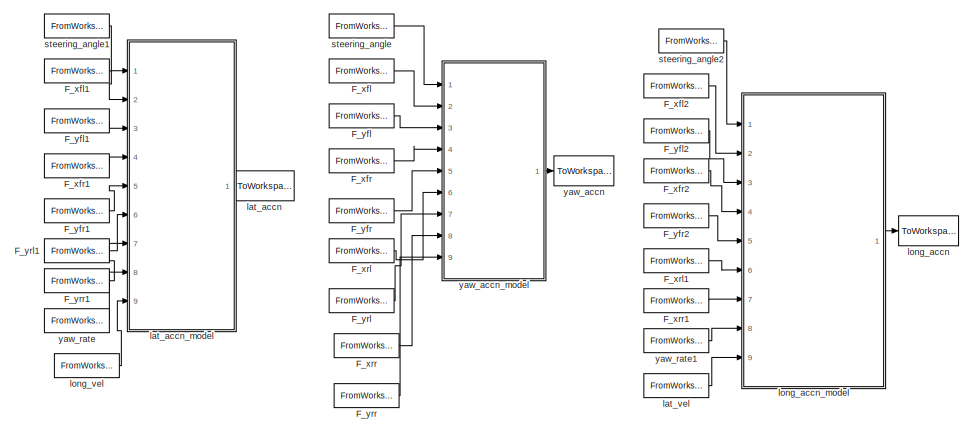
[diagram: root canvas - part 1/3, full width, top band]
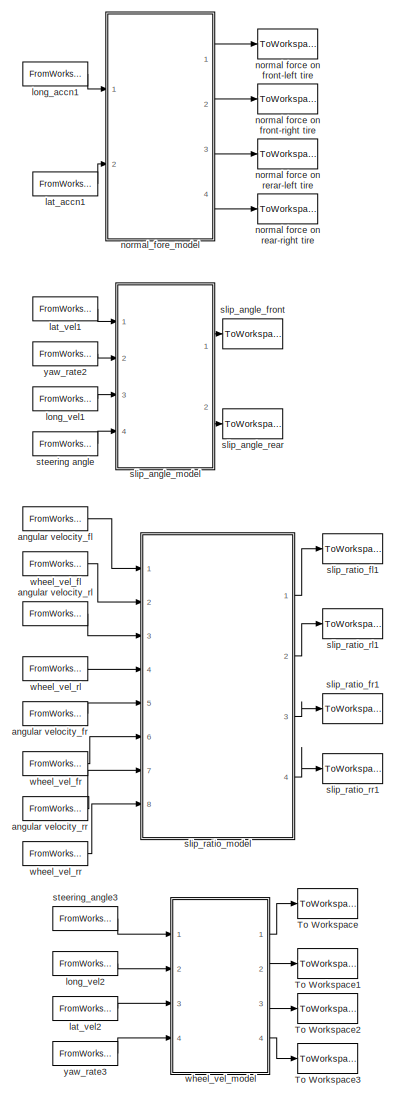
[diagram: root canvas - part 2/3, middle left region]
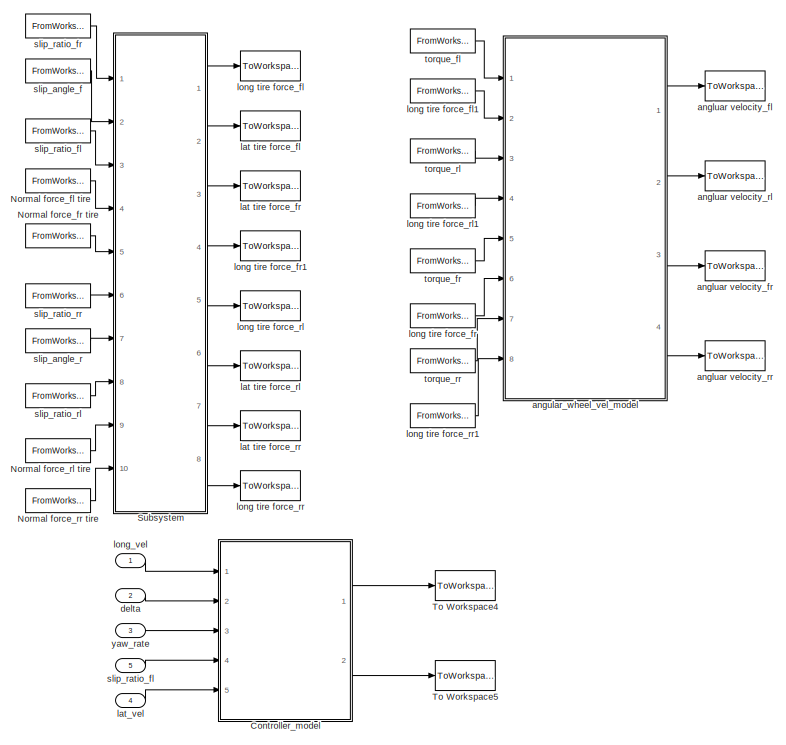
[diagram: root canvas - part 3/3, middle right region]
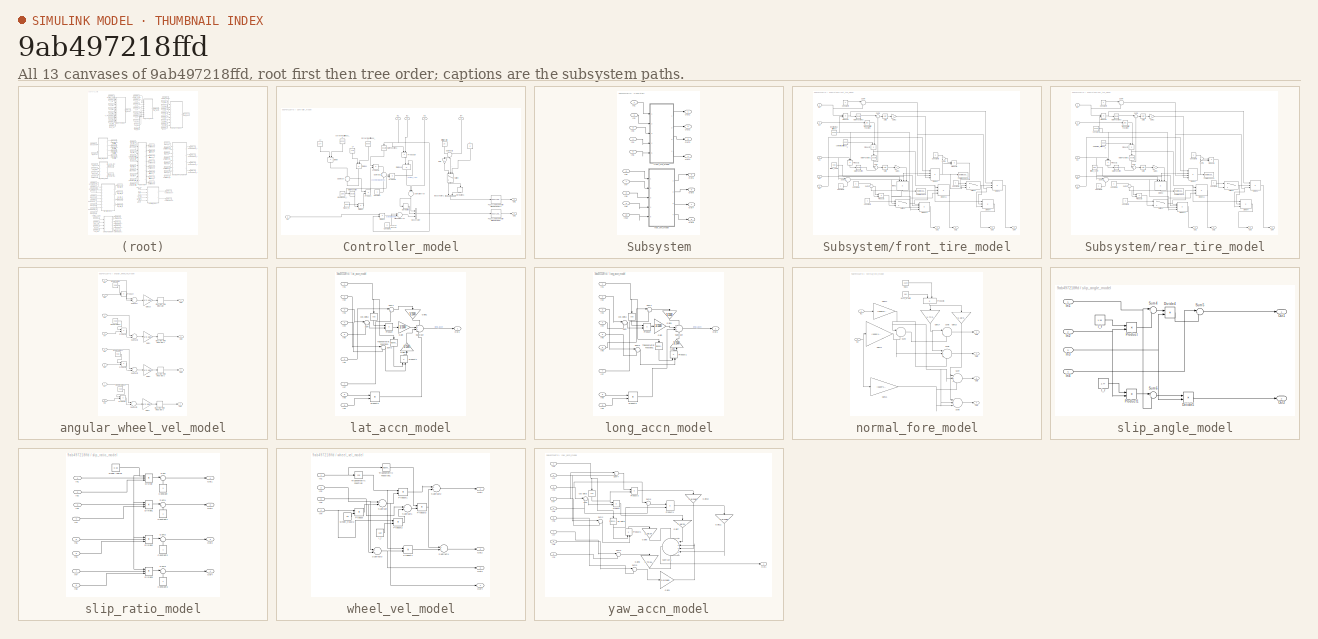
[diagram: thumbnail index - all 13 canvases of the model, root first then tree order]
MODEL slx_9ab497218ffd
KIND model
CONFIG AbsTol = auto
CONFIG FixedStep = auto
CONFIG MaxStep = auto
CONFIG MinStep = auto
CONFIG RelTol = 1e-3
CONFIG SampleTimeConstraint = Unconstrained
CONFIG Solver = ode45
CONFIG SolverMode = Auto
CONFIG SolverName = ode45
CONFIG StartTime = 0.0
CONFIG StopTime = 10.0
BLOCK [Inport]   delta 
  IconDisplay = Port number
  Port = 2
BLOCK [Inport]   lat_vel
  IconDisplay = Port number
  Port = 4
BLOCK [Inport]   long_vel  
  IconDisplay = Port number
BLOCK [Inport]   yaw_rate 
  IconDisplay = Port number
  Port = 3
BLOCK [Inport]  slip_ratio_fl  
  IconDisplay = Port number
  Port = 5
BLOCK [SubSystem] Controller_model
  Ports = [5, 2]
  RequestExecContextInheritance = off
BLOCK [BusCreator] Controller_model/Bus Creator
  DisplayOption = bar
  Inputs = 3
  Ports = [3, 1]
BLOCK [BusCreator] Controller_model/Bus Creator1
  DisplayOption = bar
  Inputs = 2
  Ports = [2, 1]
BLOCK [Constant] Controller_model/Constant
BLOCK [Constant] Controller_model/Constant1
  Value = 0
BLOCK [Constant] Controller_model/Cornering stiffness_r 
  Value = 80000
BLOCK [Derivative] Controller_model/Derivative
BLOCK [Derivative] Controller_model/Derivative1
BLOCK [Product] Controller_model/Divide
  InputSameDT = off
  Inputs = */
  OutDataTypeStr = Inherit: Inherit via internal rule
  Ports = [2, 1]
  RndMeth = Floor
  SaturateOnIntegerOverflow = off
BLOCK [Product] Controller_model/Divide1
  InputSameDT = off
  Inputs = */
  OutDataTypeStr = Inherit: Inherit via internal rule
  Ports = [2, 1]
  RndMeth = Floor
  SaturateOnIntegerOverflow = off
BLOCK [Product] Controller_model/Divide18
  InputSameDT = off
  Inputs = */
  OutDataTypeStr = Inherit: Inherit via internal rule
  Ports = [2, 1]
  RndMeth = Floor
  SaturateOnIntegerOverflow = off
BLOCK [Product] Controller_model/Divide2
  InputSameDT = off
  Inputs = */
  OutDataTypeStr = Inherit: Inherit via internal rule
  Ports = [2, 1]
  RndMeth = Floor
  SaturateOnIntegerOverflow = off
BLOCK [Product] Controller_model/Divide3
  InputSameDT = off
  Inputs = */
  OutDataTypeStr = Inherit: Inherit via internal rule
  Ports = [2, 1]
  RndMeth = Floor
  SaturateOnIntegerOverflow = off
BLOCK [Reference] Controller_model/Fuzzy Logic Controller with Ruleviewer  REF=fuzblock/Fuzzy Logic   (lib defined in mdl_858b3b3e7478)
Controller 
with Ruleviewer
  Ports = [1, 1]
  SourceBlock = fuzblock/Fuzzy Logic \nController \nwith Ruleviewer
  SourceType = FIS
  Ts = 2
  fismatrix = yaw_rate
BLOCK [Reference] Controller_model/Fuzzy Logic Controller with Ruleviewer1  REF=fuzblock/Fuzzy Logic   (lib defined in mdl_858b3b3e7478)
Controller 
with Ruleviewer
  Ports = [1, 1]
  SourceBlock = fuzblock/Fuzzy Logic \nController \nwith Ruleviewer
  SourceType = FIS
  Ts = 2
  fismatrix = slip_ratio
BLOCK [Gain] Controller_model/Gain
  Gain = -1
  OutDataTypeStr = Inherit: Inherit via internal rule
  ParamDataTypeStr = Inherit: Inherit via internal rule
  SaturateOnIntegerOverflow = off
BLOCK [Inport] Controller_model/In1
  IconDisplay = Port number
BLOCK [Inport] Controller_model/In2
  IconDisplay = Port number
  Port = 2
BLOCK [Inport] Controller_model/In3
  IconDisplay = Port number
  Port = 3
BLOCK [Inport] Controller_model/In4
  IconDisplay = Port number
  Port = 4
BLOCK [Inport] Controller_model/In5
  IconDisplay = Port number
  Port = 5
BLOCK [Math] Controller_model/Math Function
  Operator = square
  Ports = [1, 1]
BLOCK [Math] Controller_model/Math Function1
  Operator = square
  Ports = [1, 1]
BLOCK [Outport] Controller_model/Out1
  IconDisplay = Port number
BLOCK [Outport] Controller_model/Out2
  IconDisplay = Port number
  Port = 2
BLOCK [Product] Controller_model/Product
  InputSameDT = off
  OutDataTypeStr = Inherit: Inherit via internal rule
  Ports = [2, 1]
  RndMeth = Floor
  SaturateOnIntegerOverflow = off
BLOCK [Product] Controller_model/Product1
  InputSameDT = off
  OutDataTypeStr = Inherit: Inherit via internal rule
  Ports = [2, 1]
  RndMeth = Floor
  SaturateOnIntegerOverflow = off
BLOCK [Product] Controller_model/Product2
  InputSameDT = off
  OutDataTypeStr = Inherit: Inherit via internal rule
  Ports = [2, 1]
  RndMeth = Floor
  SaturateOnIntegerOverflow = off
BLOCK [Product] Controller_model/Product39
  InputSameDT = off
  OutDataTypeStr = Inherit: Inherit via internal rule
  Ports = [2, 1]
  RndMeth = Floor
  SaturateOnIntegerOverflow = off
BLOCK [Sum] Controller_model/Subtract
  IconShape = round
  InputSameDT = off
  Inputs = +-
  OutDataTypeStr = Inherit: Inherit via internal rule
  Ports = [2, 1]
  SaturateOnIntegerOverflow = off
BLOCK [Sum] Controller_model/Subtract1
  IconShape = round
  InputSameDT = off
  OutDataTypeStr = Inherit: Inherit via internal rule
  Ports = [2, 1]
  SaturateOnIntegerOverflow = off
BLOCK [Sum] Controller_model/Subtract2
  IconShape = round
  InputSameDT = off
  Inputs = +-
  OutDataTypeStr = Inherit: Inherit via internal rule
  Ports = [2, 1]
  SaturateOnIntegerOverflow = off
BLOCK [Switch] Controller_model/Switch
  Criteria = u2 > Threshold
  InputSameDT = off
  SaturateOnIntegerOverflow = off
  Threshold = 15
BLOCK [Constant] Controller_model/cornering stiffness_f 
  Value = 80000
BLOCK [Constant] Controller_model/l
  Value = 0
BLOCK [Constant] Controller_model/l_f 
  Value = 1.18
BLOCK [Constant] Controller_model/l_r 
  Value = 1.77
BLOCK [Constant] Controller_model/limit slip ratio
  Value = 15
BLOCK [Constant] Controller_model/mass_m
  Value = 1500
BLOCK [Sum] Controller_model/slip angle error  
  InputSameDT = off
  Inputs = +-
  OutDataTypeStr = Inherit: Inherit via internal rule
  Ports = [2, 1]
  SaturateOnIntegerOverflow = off
BLOCK [Constant] Controller_model/wheelbase_l
  Value = 2.95
BLOCK [Sum] Controller_model/yaw rate error   
  InputSameDT = off
  Inputs = +-
  OutDataTypeStr = Inherit: Inherit via internal rule
  Ports = [2, 1]
  SaturateOnIntegerOverflow = off
BLOCK [FromWorkspace] F_xfl
  SampleTime = 0
  VariableName = F_xfl
  ZeroCross = on
BLOCK [FromWorkspace] F_xfl1
  SampleTime = 0
  VariableName = F_xfl
  ZeroCross = on
BLOCK [FromWorkspace] F_xfl2
  SampleTime = 0
  VariableName = F_xfl
  ZeroCross = on
BLOCK [FromWorkspace] F_xfr
  SampleTime = 0
  VariableName = F_xfr
  ZeroCross = on
BLOCK [FromWorkspace] F_xfr1
  SampleTime = 0
  VariableName = F_xfr
  ZeroCross = on
BLOCK [FromWorkspace] F_xfr2
  SampleTime = 0
  VariableName = F_xfr
  ZeroCross = on
BLOCK [FromWorkspace] F_xrl
  SampleTime = 0
  VariableName = F_xrl
  ZeroCross = on
BLOCK [FromWorkspace] F_xrl1
  SampleTime = 0
  VariableName = F_xrl
  ZeroCross = on
BLOCK [FromWorkspace] F_xrr
  SampleTime = 0
  VariableName = F_xrr
  ZeroCross = on
BLOCK [FromWorkspace] F_xrr1
  SampleTime = 0
  VariableName = F_xrr
  ZeroCross = on
BLOCK [FromWorkspace] F_yfl
  SampleTime = 0
  VariableName = F_yfl
  ZeroCross = on
BLOCK [FromWorkspace] F_yfl1
  SampleTime = 0
  VariableName = F_yfl
  ZeroCross = on
BLOCK [FromWorkspace] F_yfl2
  SampleTime = 0
  VariableName = F_yfl
  ZeroCross = on
BLOCK [FromWorkspace] F_yfr
  SampleTime = 0
  VariableName = F_yfr
  ZeroCross = on
BLOCK [FromWorkspace] F_yfr1
  SampleTime = 0
  VariableName = F_yfr
  ZeroCross = on
BLOCK [FromWorkspace] F_yfr2
  SampleTime = 0
  VariableName = F_yfr
  ZeroCross = on
BLOCK [FromWorkspace] F_yrl
  SampleTime = 0
  VariableName = F_yrl
  ZeroCross = on
BLOCK [FromWorkspace] F_yrl1
  SampleTime = 0
  VariableName = F_yrl
  ZeroCross = on
BLOCK [FromWorkspace] F_yrr
  SampleTime = 0
  VariableName = F_yrr
  ZeroCross = on
BLOCK [FromWorkspace] F_yrr1
  SampleTime = 0
  VariableName = F_yrr
  ZeroCross = on
BLOCK [FromWorkspace] Normal force_fl tire
  SampleTime = 0
  VariableName = Fz_fl
  ZeroCross = on
BLOCK [FromWorkspace] Normal force_fr tire
  SampleTime = 0
  VariableName = Fz_fr
  ZeroCross = on
BLOCK [FromWorkspace] Normal force_rl tire
  SampleTime = 0
  VariableName = Fz_rl
  ZeroCross = on
BLOCK [FromWorkspace] Normal force_rr tire
  SampleTime = 0
  VariableName = Fz_rr
  ZeroCross = on
BLOCK [SubSystem] Subsystem
  Ports = [10, 8]
  RequestExecContextInheritance = off
BLOCK [Inport] Subsystem/In1
  IconDisplay = Port number
BLOCK [Inport] Subsystem/In10
  IconDisplay = Port number
  Port = 10
BLOCK [Inport] Subsystem/In2
  IconDisplay = Port number
  Port = 2
BLOCK [Inport] Subsystem/In3
  IconDisplay = Port number
  Port = 3
BLOCK [Inport] Subsystem/In4
  IconDisplay = Port number
  Port = 4
BLOCK [Inport] Subsystem/In5
  IconDisplay = Port number
  Port = 5
BLOCK [Inport] Subsystem/In6
  IconDisplay = Port number
  Port = 6
BLOCK [Inport] Subsystem/In7
  IconDisplay = Port number
  Port = 7
BLOCK [Inport] Subsystem/In8
  IconDisplay = Port number
  Port = 8
BLOCK [Inport] Subsystem/In9
  IconDisplay = Port number
  Port = 9
BLOCK [Outport] Subsystem/Out1
  IconDisplay = Port number
BLOCK [Outport] Subsystem/Out2
  IconDisplay = Port number
  Port = 2
BLOCK [Outport] Subsystem/Out3
  IconDisplay = Port number
  Port = 3
BLOCK [Outport] Subsystem/Out4
  IconDisplay = Port number
  Port = 4
BLOCK [Outport] Subsystem/Out5
  IconDisplay = Port number
  Port = 5
BLOCK [Outport] Subsystem/Out6
  IconDisplay = Port number
  Port = 6
BLOCK [Outport] Subsystem/Out7
  IconDisplay = Port number
  Port = 7
BLOCK [Outport] Subsystem/Out8
  IconDisplay = Port number
  Port = 8
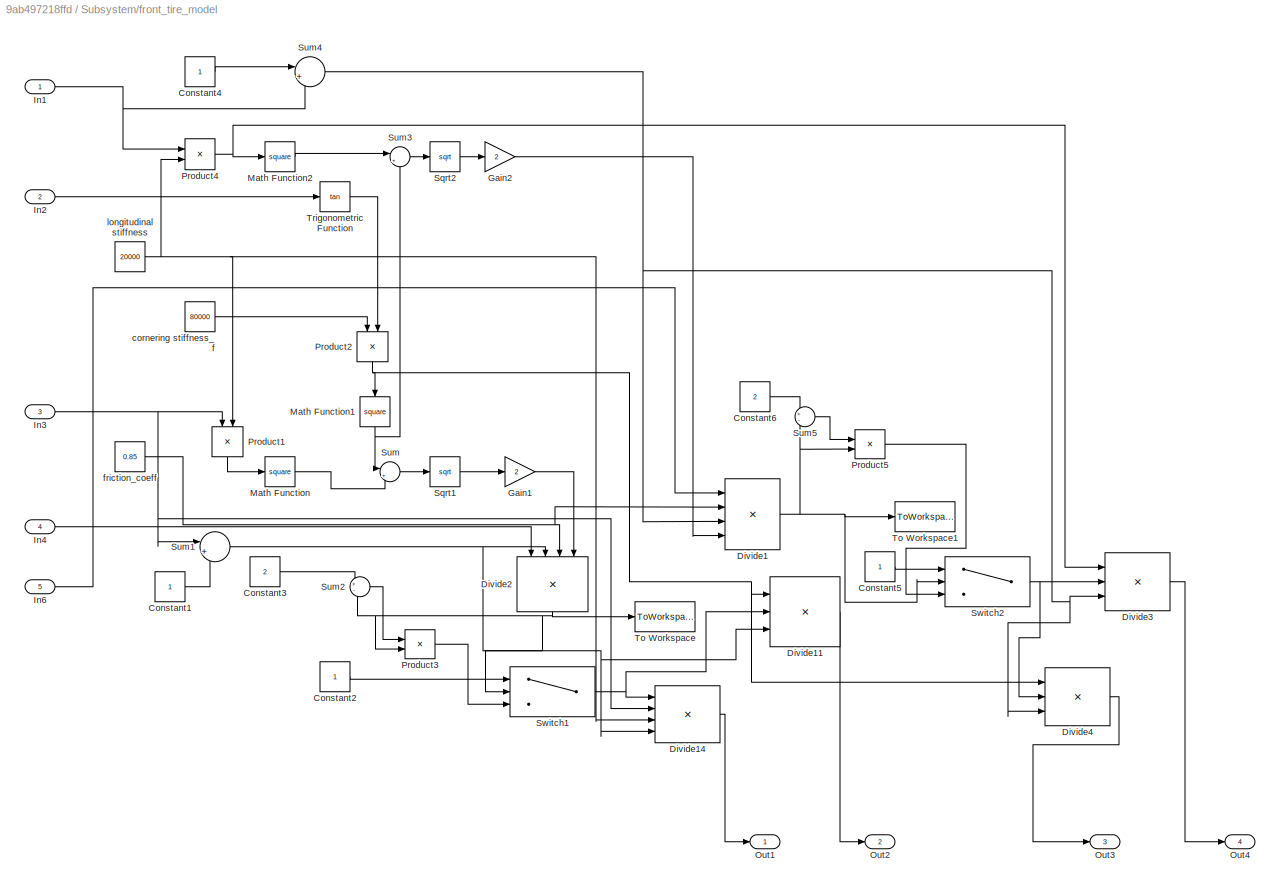
BLOCK [SubSystem] Subsystem/front_tire_model
  Ports = [5, 4]
  RequestExecContextInheritance = off
BLOCK [Constant] Subsystem/front_tire_model/Constant1
BLOCK [Constant] Subsystem/front_tire_model/Constant2
BLOCK [Constant] Subsystem/front_tire_model/Constant3
  Value = 2
BLOCK [Constant] Subsystem/front_tire_model/Constant4
BLOCK [Constant] Subsystem/front_tire_model/Constant5
BLOCK [Constant] Subsystem/front_tire_model/Constant6
  Value = 2
BLOCK [Product] Subsystem/front_tire_model/Divide1
  InputSameDT = off
  Inputs = ***/
  OutDataTypeStr = Inherit: Inherit via internal rule
  Ports = [4, 1]
  RndMeth = Floor
  SaturateOnIntegerOverflow = off
BLOCK [Product] Subsystem/front_tire_model/Divide11
  InputSameDT = off
  Inputs = **/
  OutDataTypeStr = Inherit: Inherit via internal rule
  Ports = [3, 1]
  RndMeth = Floor
  SaturateOnIntegerOverflow = off
BLOCK [Product] Subsystem/front_tire_model/Divide14
  InputSameDT = off
  Inputs = ***/
  OutDataTypeStr = Inherit: Inherit via internal rule
  Ports = [4, 1]
  RndMeth = Floor
  SaturateOnIntegerOverflow = off
BLOCK [Product] Subsystem/front_tire_model/Divide2
  InputSameDT = off
  Inputs = ***/
  OutDataTypeStr = Inherit: Inherit via internal rule
  Ports = [4, 1]
  RndMeth = Floor
  SaturateOnIntegerOverflow = off
BLOCK [Product] Subsystem/front_tire_model/Divide3
  InputSameDT = off
  Inputs = **/
  OutDataTypeStr = Inherit: Inherit via internal rule
  Ports = [3, 1]
  RndMeth = Floor
  SaturateOnIntegerOverflow = off
BLOCK [Product] Subsystem/front_tire_model/Divide4
  InputSameDT = off
  Inputs = **/
  OutDataTypeStr = Inherit: Inherit via internal rule
  Ports = [3, 1]
  RndMeth = Floor
  SaturateOnIntegerOverflow = off
BLOCK [Gain] Subsystem/front_tire_model/Gain1
  Gain = 2
  OutDataTypeStr = Inherit: Inherit via internal rule
  ParamDataTypeStr = Inherit: Inherit via internal rule
  SaturateOnIntegerOverflow = off
BLOCK [Gain] Subsystem/front_tire_model/Gain2
  Gain = 2
  OutDataTypeStr = Inherit: Inherit via internal rule
  ParamDataTypeStr = Inherit: Inherit via internal rule
  SaturateOnIntegerOverflow = off
BLOCK [Inport] Subsystem/front_tire_model/In1
  IconDisplay = Port number
BLOCK [Inport] Subsystem/front_tire_model/In2
  IconDisplay = Port number
  Port = 2
BLOCK [Inport] Subsystem/front_tire_model/In3
  IconDisplay = Port number
  Port = 3
BLOCK [Inport] Subsystem/front_tire_model/In4
  IconDisplay = Port number
  Port = 4
BLOCK [Inport] Subsystem/front_tire_model/In6
  IconDisplay = Port number
  Port = 5
BLOCK [Math] Subsystem/front_tire_model/Math Function
  Operator = square
  Ports = [1, 1]
BLOCK [Math] Subsystem/front_tire_model/Math Function1
  Operator = square
  Ports = [1, 1]
BLOCK [Math] Subsystem/front_tire_model/Math Function2
  Operator = square
  Ports = [1, 1]
BLOCK [Outport] Subsystem/front_tire_model/Out1
  IconDisplay = Port number
BLOCK [Outport] Subsystem/front_tire_model/Out2
  IconDisplay = Port number
  Port = 2
BLOCK [Outport] Subsystem/front_tire_model/Out3
  IconDisplay = Port number
  Port = 3
BLOCK [Outport] Subsystem/front_tire_model/Out4
  IconDisplay = Port number
  Port = 4
BLOCK [Product] Subsystem/front_tire_model/Product1
  InputSameDT = off
  OutDataTypeStr = Inherit: Inherit via internal rule
  Ports = [2, 1]
  RndMeth = Floor
  SaturateOnIntegerOverflow = off
BLOCK [Product] Subsystem/front_tire_model/Product2
  InputSameDT = off
  OutDataTypeStr = Inherit: Inherit via internal rule
  Ports = [2, 1]
  RndMeth = Floor
  SaturateOnIntegerOverflow = off
BLOCK [Product] Subsystem/front_tire_model/Product3
  InputSameDT = off
  OutDataTypeStr = Inherit: Inherit via internal rule
  Ports = [2, 1]
  RndMeth = Floor
  SaturateOnIntegerOverflow = off
BLOCK [Product] Subsystem/front_tire_model/Product4
  InputSameDT = off
  OutDataTypeStr = Inherit: Inherit via internal rule
  Ports = [2, 1]
  RndMeth = Floor
  SaturateOnIntegerOverflow = off
BLOCK [Product] Subsystem/front_tire_model/Product5
  InputSameDT = off
  OutDataTypeStr = Inherit: Inherit via internal rule
  Ports = [2, 1]
  RndMeth = Floor
  SaturateOnIntegerOverflow = off
BLOCK [Sqrt] Subsystem/front_tire_model/Sqrt1
BLOCK [Sqrt] Subsystem/front_tire_model/Sqrt2
BLOCK [Sum] Subsystem/front_tire_model/Sum
  IconShape = round
  InputSameDT = off
  Inputs = |++
  OutDataTypeStr = Inherit: Inherit via internal rule
  Ports = [2, 1]
  SaturateOnIntegerOverflow = off
BLOCK [Sum] Subsystem/front_tire_model/Sum1
  IconShape = round
  InputSameDT = off
  Inputs = |++
  OutDataTypeStr = Inherit: Inherit via internal rule
  Ports = [2, 1]
  SaturateOnIntegerOverflow = off
BLOCK [Sum] Subsystem/front_tire_model/Sum2
  IconShape = round
  InputSameDT = off
  Inputs = +-
  OutDataTypeStr = Inherit: Inherit via internal rule
  Ports = [2, 1]
  SaturateOnIntegerOverflow = off
BLOCK [Sum] Subsystem/front_tire_model/Sum3
  IconShape = round
  InputSameDT = off
  Inputs = |++
  OutDataTypeStr = Inherit: Inherit via internal rule
  Ports = [2, 1]
  SaturateOnIntegerOverflow = off
BLOCK [Sum] Subsystem/front_tire_model/Sum4
  IconShape = round
  InputSameDT = off
  Inputs = |++
  OutDataTypeStr = Inherit: Inherit via internal rule
  Ports = [2, 1]
  SaturateOnIntegerOverflow = off
BLOCK [Sum] Subsystem/front_tire_model/Sum5
  IconShape = round
  InputSameDT = off
  Inputs = +-
  OutDataTypeStr = Inherit: Inherit via internal rule
  Ports = [2, 1]
  SaturateOnIntegerOverflow = off
BLOCK [Switch] Subsystem/front_tire_model/Switch1
  InputSameDT = off
  SaturateOnIntegerOverflow = off
  Threshold = 1
BLOCK [Switch] Subsystem/front_tire_model/Switch2
  InputSameDT = off
  SaturateOnIntegerOverflow = off
  Threshold = 1
BLOCK [ToWorkspace] Subsystem/front_tire_model/To Workspace
  FixptAsFi = on
  MaxDataPoints = inf
  Ports = [1]
  SampleTime = -1
  Save2DSignal = 3-D array (concatenate along third dimension)
  SaveFormat = Timeseries
  VariableName = lambda_fl
BLOCK [ToWorkspace] Subsystem/front_tire_model/To Workspace1
  FixptAsFi = on
  MaxDataPoints = inf
  Ports = [1]
  SampleTime = -1
  Save2DSignal = 3-D array (concatenate along third dimension)
  SaveFormat = Timeseries
  VariableName = lambda_fr
BLOCK [Trigonometry] Subsystem/front_tire_model/Trigonometric Function
  Operator = tan
  Ports = [1, 1]
BLOCK [Constant] Subsystem/front_tire_model/cornering stiffness_f
  Value = 80000
BLOCK [Constant] Subsystem/front_tire_model/friction_coeff
  Value = 0.85
BLOCK [Constant] Subsystem/front_tire_model/longitudinal stiffness
  Value = 20000
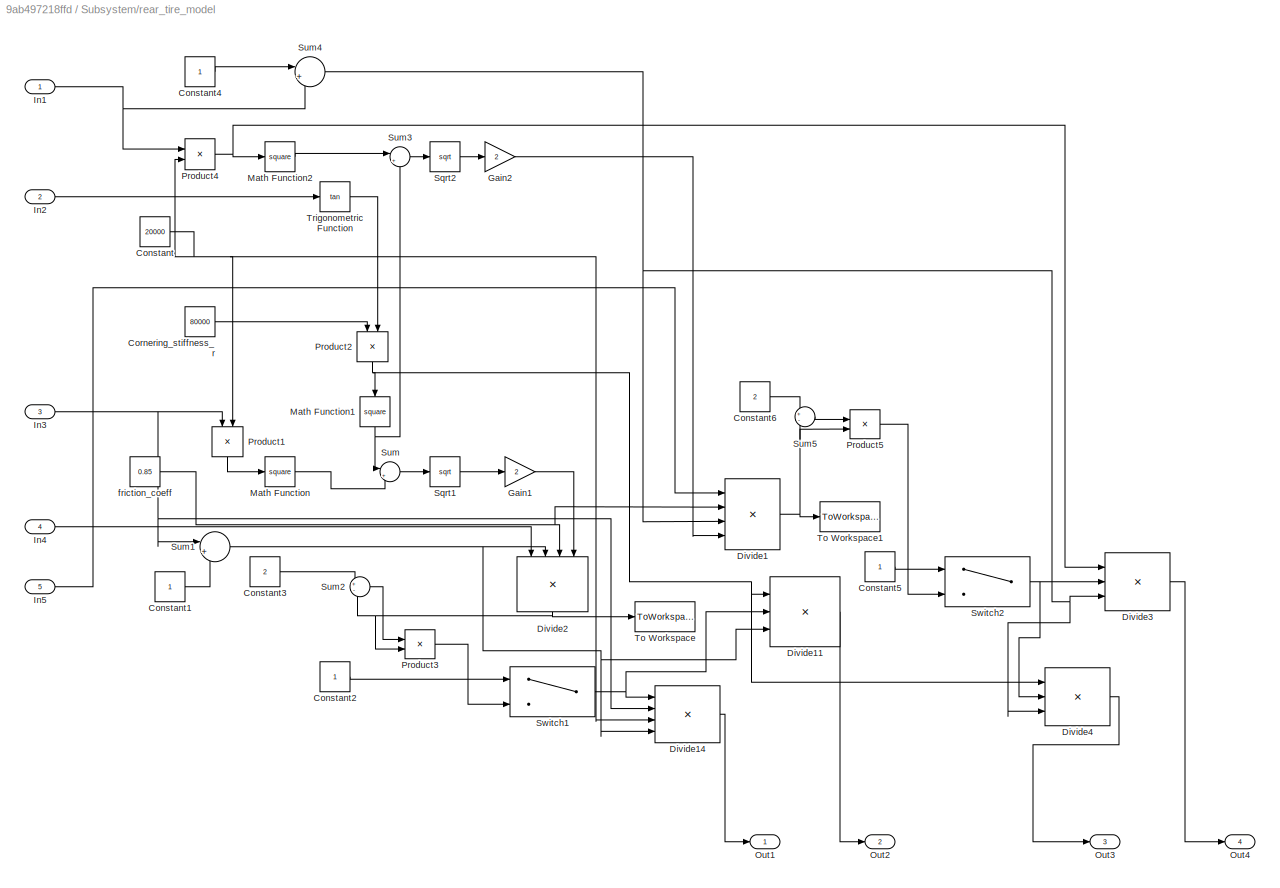
BLOCK [SubSystem] Subsystem/rear_tire_model
  Ports = [5, 4]
  RequestExecContextInheritance = off
BLOCK [Constant] Subsystem/rear_tire_model/Constant
  Value = 20000
BLOCK [Constant] Subsystem/rear_tire_model/Constant1
BLOCK [Constant] Subsystem/rear_tire_model/Constant2
BLOCK [Constant] Subsystem/rear_tire_model/Constant3
  Value = 2
BLOCK [Constant] Subsystem/rear_tire_model/Constant4
BLOCK [Constant] Subsystem/rear_tire_model/Constant5
BLOCK [Constant] Subsystem/rear_tire_model/Constant6
  Value = 2
BLOCK [Constant] Subsystem/rear_tire_model/Cornering_stiffness_r
  Value = 80000
BLOCK [Product] Subsystem/rear_tire_model/Divide1
  InputSameDT = off
  Inputs = ***/
  OutDataTypeStr = Inherit: Inherit via internal rule
  Ports = [4, 1]
  RndMeth = Floor
  SaturateOnIntegerOverflow = off
BLOCK [Product] Subsystem/rear_tire_model/Divide11
  InputSameDT = off
  Inputs = **/
  OutDataTypeStr = Inherit: Inherit via internal rule
  Ports = [3, 1]
  RndMeth = Floor
  SaturateOnIntegerOverflow = off
BLOCK [Product] Subsystem/rear_tire_model/Divide14
  InputSameDT = off
  Inputs = ***/
  OutDataTypeStr = Inherit: Inherit via internal rule
  Ports = [4, 1]
  RndMeth = Floor
  SaturateOnIntegerOverflow = off
BLOCK [Product] Subsystem/rear_tire_model/Divide2
  InputSameDT = off
  Inputs = ***/
  OutDataTypeStr = Inherit: Inherit via internal rule
  Ports = [4, 1]
  RndMeth = Floor
  SaturateOnIntegerOverflow = off
BLOCK [Product] Subsystem/rear_tire_model/Divide3
  InputSameDT = off
  Inputs = **/
  OutDataTypeStr = Inherit: Inherit via internal rule
  Ports = [3, 1]
  RndMeth = Floor
  SaturateOnIntegerOverflow = off
BLOCK [Product] Subsystem/rear_tire_model/Divide4
  InputSameDT = off
  Inputs = **/
  OutDataTypeStr = Inherit: Inherit via internal rule
  Ports = [3, 1]
  RndMeth = Floor
  SaturateOnIntegerOverflow = off
BLOCK [Gain] Subsystem/rear_tire_model/Gain1
  Gain = 2
  OutDataTypeStr = Inherit: Inherit via internal rule
  ParamDataTypeStr = Inherit: Inherit via internal rule
  SaturateOnIntegerOverflow = off
BLOCK [Gain] Subsystem/rear_tire_model/Gain2
  Gain = 2
  OutDataTypeStr = Inherit: Inherit via internal rule
  ParamDataTypeStr = Inherit: Inherit via internal rule
  SaturateOnIntegerOverflow = off
BLOCK [Inport] Subsystem/rear_tire_model/In1
  IconDisplay = Port number
BLOCK [Inport] Subsystem/rear_tire_model/In2
  IconDisplay = Port number
  Port = 2
BLOCK [Inport] Subsystem/rear_tire_model/In3
  IconDisplay = Port number
  Port = 3
BLOCK [Inport] Subsystem/rear_tire_model/In4
  IconDisplay = Port number
  Port = 4
BLOCK [Inport] Subsystem/rear_tire_model/In5
  IconDisplay = Port number
  Port = 5
BLOCK [Math] Subsystem/rear_tire_model/Math Function
  Operator = square
  Ports = [1, 1]
BLOCK [Math] Subsystem/rear_tire_model/Math Function1
  Operator = square
  Ports = [1, 1]
BLOCK [Math] Subsystem/rear_tire_model/Math Function2
  Operator = square
  Ports = [1, 1]
BLOCK [Outport] Subsystem/rear_tire_model/Out1
  IconDisplay = Port number
BLOCK [Outport] Subsystem/rear_tire_model/Out2
  IconDisplay = Port number
  Port = 2
BLOCK [Outport] Subsystem/rear_tire_model/Out3
  IconDisplay = Port number
  Port = 3
BLOCK [Outport] Subsystem/rear_tire_model/Out4
  IconDisplay = Port number
  Port = 4
BLOCK [Product] Subsystem/rear_tire_model/Product1
  InputSameDT = off
  OutDataTypeStr = Inherit: Inherit via internal rule
  Ports = [2, 1]
  RndMeth = Floor
  SaturateOnIntegerOverflow = off
BLOCK [Product] Subsystem/rear_tire_model/Product2
  InputSameDT = off
  OutDataTypeStr = Inherit: Inherit via internal rule
  Ports = [2, 1]
  RndMeth = Floor
  SaturateOnIntegerOverflow = off
BLOCK [Product] Subsystem/rear_tire_model/Product3
  InputSameDT = off
  OutDataTypeStr = Inherit: Inherit via internal rule
  Ports = [2, 1]
  RndMeth = Floor
  SaturateOnIntegerOverflow = off
BLOCK [Product] Subsystem/rear_tire_model/Product4
  InputSameDT = off
  OutDataTypeStr = Inherit: Inherit via internal rule
  Ports = [2, 1]
  RndMeth = Floor
  SaturateOnIntegerOverflow = off
BLOCK [Product] Subsystem/rear_tire_model/Product5
  InputSameDT = off
  OutDataTypeStr = Inherit: Inherit via internal rule
  Ports = [2, 1]
  RndMeth = Floor
  SaturateOnIntegerOverflow = off
BLOCK [Sqrt] Subsystem/rear_tire_model/Sqrt1
BLOCK [Sqrt] Subsystem/rear_tire_model/Sqrt2
BLOCK [Sum] Subsystem/rear_tire_model/Sum
  IconShape = round
  InputSameDT = off
  Inputs = |++
  OutDataTypeStr = Inherit: Inherit via internal rule
  Ports = [2, 1]
  SaturateOnIntegerOverflow = off
BLOCK [Sum] Subsystem/rear_tire_model/Sum1
  IconShape = round
  InputSameDT = off
  Inputs = |++
  OutDataTypeStr = Inherit: Inherit via internal rule
  Ports = [2, 1]
  SaturateOnIntegerOverflow = off
BLOCK [Sum] Subsystem/rear_tire_model/Sum2
  IconShape = round
  InputSameDT = off
  Inputs = +-
  OutDataTypeStr = Inherit: Inherit via internal rule
  Ports = [2, 1]
  SaturateOnIntegerOverflow = off
BLOCK [Sum] Subsystem/rear_tire_model/Sum3
  IconShape = round
  InputSameDT = off
  Inputs = |++
  OutDataTypeStr = Inherit: Inherit via internal rule
  Ports = [2, 1]
  SaturateOnIntegerOverflow = off
BLOCK [Sum] Subsystem/rear_tire_model/Sum4
  IconShape = round
  InputSameDT = off
  Inputs = |++
  OutDataTypeStr = Inherit: Inherit via internal rule
  Ports = [2, 1]
  SaturateOnIntegerOverflow = off
BLOCK [Sum] Subsystem/rear_tire_model/Sum5
  IconShape = round
  InputSameDT = off
  Inputs = +-
  OutDataTypeStr = Inherit: Inherit via internal rule
  Ports = [2, 1]
  SaturateOnIntegerOverflow = off
BLOCK [Switch] Subsystem/rear_tire_model/Switch1
  InputSameDT = off
  SaturateOnIntegerOverflow = off
  Threshold = 1
BLOCK [Switch] Subsystem/rear_tire_model/Switch2
  InputSameDT = off
  SaturateOnIntegerOverflow = off
  Threshold = 1
BLOCK [ToWorkspace] Subsystem/rear_tire_model/To Workspace
  FixptAsFi = on
  MaxDataPoints = inf
  Ports = [1]
  SampleTime = -1
  Save2DSignal = 3-D array (concatenate along third dimension)
  SaveFormat = Timeseries
  VariableName = lambda_rl
BLOCK [ToWorkspace] Subsystem/rear_tire_model/To Workspace1
  FixptAsFi = on
  MaxDataPoints = inf
  Ports = [1]
  SampleTime = -1
  Save2DSignal = 3-D array (concatenate along third dimension)
  SaveFormat = Timeseries
  VariableName = lambda_rr
BLOCK [Trigonometry] Subsystem/rear_tire_model/Trigonometric Function
  Operator = tan
  Ports = [1, 1]
BLOCK [Constant] Subsystem/rear_tire_model/friction_coeff
  Value = 0.85
BLOCK [ToWorkspace] To Workspace
  FixptAsFi = on
  MaxDataPoints = inf
  Ports = [1]
  SampleTime = -1
  Save2DSignal = 3-D array (concatenate along third dimension)
  SaveFormat = Timeseries
  VariableName = wheel_vel_fl
BLOCK [ToWorkspace] To Workspace1
  FixptAsFi = on
  MaxDataPoints = inf
  Ports = [1]
  SampleTime = -1
  Save2DSignal = 3-D array (concatenate along third dimension)
  SaveFormat = Timeseries
  VariableName = wheel_vel_fr
BLOCK [ToWorkspace] To Workspace2
  FixptAsFi = on
  MaxDataPoints = inf
  Ports = [1]
  SampleTime = -1
  Save2DSignal = 3-D array (concatenate along third dimension)
  SaveFormat = Timeseries
  VariableName = wheel_vel_rl
BLOCK [ToWorkspace] To Workspace3
  FixptAsFi = on
  MaxDataPoints = inf
  Ports = [1]
  SampleTime = -1
  Save2DSignal = 3-D array (concatenate along third dimension)
  SaveFormat = Timeseries
  VariableName = wheel_vel_rr
BLOCK [ToWorkspace] To Workspace4
  FixptAsFi = on
  MaxDataPoints = inf
  Ports = [1]
  SampleTime = -1
  Save2DSignal = 3-D array (concatenate along third dimension)
  SaveFormat = Timeseries
  VariableName = Tc_fr
BLOCK [ToWorkspace] To Workspace5
  FixptAsFi = on
  MaxDataPoints = inf
  Ports = [1]
  SampleTime = -1
  Save2DSignal = 3-D array (concatenate along third dimension)
  SaveFormat = Timeseries
  VariableName = Tc_lr
BLOCK [ToWorkspace] angluar velocity_fl
  FixptAsFi = on
  MaxDataPoints = inf
  Ports = [1]
  SampleTime = -1
  Save2DSignal = 3-D array (concatenate along third dimension)
  SaveFormat = Timeseries
  VariableName = w_fl
BLOCK [ToWorkspace] angluar velocity_fr
  FixptAsFi = on
  MaxDataPoints = inf
  Ports = [1]
  SampleTime = -1
  Save2DSignal = 3-D array (concatenate along third dimension)
  SaveFormat = Timeseries
  VariableName = w_fr
BLOCK [ToWorkspace] angluar velocity_rl
  FixptAsFi = on
  MaxDataPoints = inf
  Ports = [1]
  SampleTime = -1
  Save2DSignal = 3-D array (concatenate along third dimension)
  SaveFormat = Timeseries
  VariableName = w_rl
BLOCK [ToWorkspace] angluar velocity_rr
  FixptAsFi = on
  MaxDataPoints = inf
  Ports = [1]
  SampleTime = -1
  Save2DSignal = 3-D array (concatenate along third dimension)
  SaveFormat = Timeseries
  VariableName = w_rr
BLOCK [FromWorkspace] angular velocity_fl
  SampleTime = 0
  VariableName = w_fl
  ZeroCross = on
BLOCK [FromWorkspace] angular velocity_fr
  SampleTime = 0
  VariableName = w_fr
  ZeroCross = on
BLOCK [FromWorkspace] angular velocity_rl
  SampleTime = 0
  VariableName = w_rl
  ZeroCross = on
BLOCK [FromWorkspace] angular velocity_rr
  SampleTime = 0
  VariableName = w_rr
  ZeroCross = on
BLOCK [SubSystem] angular_wheel_vel_model
  Ports = [8, 4]
  RequestExecContextInheritance = off
BLOCK [DiscreteIntegrator] angular_wheel_vel_model/Discrete-Time Integrator
  InitialConditionSetting = State (most efficient)
  Ports = [1, 1]
BLOCK [DiscreteIntegrator] angular_wheel_vel_model/Discrete-Time Integrator1
  InitialConditionSetting = State (most efficient)
  Ports = [1, 1]
BLOCK [DiscreteIntegrator] angular_wheel_vel_model/Discrete-Time Integrator2
  InitialConditionSetting = State (most efficient)
  Ports = [1, 1]
BLOCK [DiscreteIntegrator] angular_wheel_vel_model/Discrete-Time Integrator3
  InitialConditionSetting = State (most efficient)
  Ports = [1, 1]
BLOCK [Gain] angular_wheel_vel_model/Gain1
  Gain = 1/2.166
  OutDataTypeStr = Inherit: Inherit via internal rule
  ParamDataTypeStr = Inherit: Inherit via internal rule
  SaturateOnIntegerOverflow = off
BLOCK [Gain] angular_wheel_vel_model/Gain2
  Gain = 1/2.166
  OutDataTypeStr = Inherit: Inherit via internal rule
  ParamDataTypeStr = Inherit: Inherit via internal rule
  SaturateOnIntegerOverflow = off
BLOCK [Gain] angular_wheel_vel_model/Gain23
  Gain = 1/2.166
  OutDataTypeStr = Inherit: Inherit via internal rule
  ParamDataTypeStr = Inherit: Inherit via internal rule
  SaturateOnIntegerOverflow = off
BLOCK [Gain] angular_wheel_vel_model/Gain3
  Gain = 1/2.166
  OutDataTypeStr = Inherit: Inherit via internal rule
  ParamDataTypeStr = Inherit: Inherit via internal rule
  SaturateOnIntegerOverflow = off
BLOCK [Inport] angular_wheel_vel_model/In1
  IconDisplay = Port number
BLOCK [Inport] angular_wheel_vel_model/In2
  IconDisplay = Port number
  Port = 2
BLOCK [Inport] angular_wheel_vel_model/In3
  IconDisplay = Port number
  Port = 3
BLOCK [Inport] angular_wheel_vel_model/In4
  IconDisplay = Port number
  Port = 4
BLOCK [Inport] angular_wheel_vel_model/In5
  IconDisplay = Port number
  Port = 5
BLOCK [Inport] angular_wheel_vel_model/In6
  IconDisplay = Port number
  Port = 6
BLOCK [Inport] angular_wheel_vel_model/In7
  IconDisplay = Port number
  Port = 7
BLOCK [Inport] angular_wheel_vel_model/In8
  IconDisplay = Port number
  Port = 8
BLOCK [Outport] angular_wheel_vel_model/Out1
  IconDisplay = Port number
BLOCK [Outport] angular_wheel_vel_model/Out2
  IconDisplay = Port number
  Port = 2
BLOCK [Outport] angular_wheel_vel_model/Out3
  IconDisplay = Port number
  Port = 3
BLOCK [Outport] angular_wheel_vel_model/Out4
  IconDisplay = Port number
  Port = 4
BLOCK [Product] angular_wheel_vel_model/Product
  InputSameDT = off
  OutDataTypeStr = Inherit: Inherit via internal rule
  Ports = [2, 1]
  RndMeth = Floor
  SaturateOnIntegerOverflow = off
BLOCK [Product] angular_wheel_vel_model/Product1
  InputSameDT = off
  OutDataTypeStr = Inherit: Inherit via internal rule
  Ports = [2, 1]
  RndMeth = Floor
  SaturateOnIntegerOverflow = off
BLOCK [Product] angular_wheel_vel_model/Product2
  InputSameDT = off
  OutDataTypeStr = Inherit: Inherit via internal rule
  Ports = [2, 1]
  RndMeth = Floor
  SaturateOnIntegerOverflow = off
BLOCK [Product] angular_wheel_vel_model/Product3
  InputSameDT = off
  OutDataTypeStr = Inherit: Inherit via internal rule
  Ports = [2, 1]
  RndMeth = Floor
  SaturateOnIntegerOverflow = off
BLOCK [Sum] angular_wheel_vel_model/Subtract
  InputSameDT = off
  Inputs = +-
  OutDataTypeStr = Inherit: Inherit via internal rule
  Ports = [2, 1]
  SaturateOnIntegerOverflow = off
BLOCK [Sum] angular_wheel_vel_model/Subtract1
  InputSameDT = off
  Inputs = +-
  OutDataTypeStr = Inherit: Inherit via internal rule
  Ports = [2, 1]
  SaturateOnIntegerOverflow = off
BLOCK [Sum] angular_wheel_vel_model/Subtract2
  InputSameDT = off
  Inputs = +-
  OutDataTypeStr = Inherit: Inherit via internal rule
  Ports = [2, 1]
  SaturateOnIntegerOverflow = off
BLOCK [Sum] angular_wheel_vel_model/Subtract3
  InputSameDT = off
  Inputs = +-
  OutDataTypeStr = Inherit: Inherit via internal rule
  Ports = [2, 1]
  SaturateOnIntegerOverflow = off
BLOCK [Constant] angular_wheel_vel_model/wheel radius 
  Value = 0.38
BLOCK [Constant] angular_wheel_vel_model/wheel radius 1
  Value = 0.38
BLOCK [Constant] angular_wheel_vel_model/wheel radius 2
  Value = 0.38
BLOCK [Constant] angular_wheel_vel_model/wheel radius 3
  Value = 0.38
BLOCK [ToWorkspace] lat tire force_fl
  FixptAsFi = on
  MaxDataPoints = inf
  Ports = [1]
  SampleTime = -1
  Save2DSignal = 3-D array (concatenate along third dimension)
  SaveFormat = Timeseries
  VariableName = F_yfl
BLOCK [ToWorkspace] lat tire force_fr
  FixptAsFi = on
  MaxDataPoints = inf
  Ports = [1]
  SampleTime = -1
  Save2DSignal = 3-D array (concatenate along third dimension)
  SaveFormat = Timeseries
  VariableName = F_yfr
BLOCK [ToWorkspace] lat tire force_rl
  FixptAsFi = on
  MaxDataPoints = inf
  Ports = [1]
  SampleTime = -1
  Save2DSignal = 3-D array (concatenate along third dimension)
  SaveFormat = Timeseries
  VariableName = F_yrl
BLOCK [ToWorkspace] lat tire force_rr
  FixptAsFi = on
  MaxDataPoints = inf
  Ports = [1]
  SampleTime = -1
  Save2DSignal = 3-D array (concatenate along third dimension)
  SaveFormat = Timeseries
  VariableName = F_yrr
BLOCK [ToWorkspace] lat_accn
  FixptAsFi = on
  MaxDataPoints = inf
  Ports = [1]
  SampleTime = -1
  Save2DSignal = 3-D array (concatenate along third dimension)
  SaveFormat = Timeseries
  VariableName = lat_accn
BLOCK [FromWorkspace] lat_accn1
  SampleTime = 0
  VariableName = lat_accn
  ZeroCross = on
BLOCK [SubSystem] lat_accn_model
  Ports = [9, 1]
  RequestExecContextInheritance = off
BLOCK [Gain] lat_accn_model/Gain
  Gain = 1/1500
  OutDataTypeStr = Inherit: Inherit via internal rule
  ParamDataTypeStr = Inherit: Inherit via internal rule
  SaturateOnIntegerOverflow = off
BLOCK [Gain] lat_accn_model/Gain1
  Gain = 1/1500
  OutDataTypeStr = Inherit: Inherit via internal rule
  ParamDataTypeStr = Inherit: Inherit via internal rule
  SaturateOnIntegerOverflow = off
BLOCK [Gain] lat_accn_model/Gain2
  Gain = 1/1500
  OutDataTypeStr = Inherit: Inherit via internal rule
  ParamDataTypeStr = Inherit: Inherit via internal rule
  SaturateOnIntegerOverflow = off
BLOCK [Inport] lat_accn_model/In1
  IconDisplay = Port number
BLOCK [Inport] lat_accn_model/In2
  IconDisplay = Port number
  Port = 2
BLOCK [Inport] lat_accn_model/In3
  IconDisplay = Port number
  Port = 3
BLOCK [Inport] lat_accn_model/In4
  IconDisplay = Port number
  Port = 4
BLOCK [Inport] lat_accn_model/In5
  IconDisplay = Port number
  Port = 5
BLOCK [Inport] lat_accn_model/In6
  IconDisplay = Port number
  Port = 6
BLOCK [Inport] lat_accn_model/In7
  IconDisplay = Port number
  Port = 7
BLOCK [Inport] lat_accn_model/In8
  IconDisplay = Port number
  Port = 8
BLOCK [Inport] lat_accn_model/In9
  IconDisplay = Port number
  Port = 9
BLOCK [Outport] lat_accn_model/Out1
  IconDisplay = Port number
BLOCK [Product] lat_accn_model/Product
  InputSameDT = off
  OutDataTypeStr = Inherit: Inherit via internal rule
  Ports = [2, 1]
  RndMeth = Floor
  SaturateOnIntegerOverflow = off
BLOCK [Product] lat_accn_model/Product1
  InputSameDT = off
  OutDataTypeStr = Inherit: Inherit via internal rule
  Ports = [2, 1]
  RndMeth = Floor
  SaturateOnIntegerOverflow = off
BLOCK [Product] lat_accn_model/Product2
  InputSameDT = off
  OutDataTypeStr = Inherit: Inherit via internal rule
  Ports = [2, 1]
  RndMeth = Floor
  SaturateOnIntegerOverflow = off
BLOCK [Sum] lat_accn_model/Subtract
  IconShape = round
  InputSameDT = off
  Inputs = +++-
  OutDataTypeStr = Inherit: Inherit via internal rule
  Ports = [4, 1]
  SaturateOnIntegerOverflow = off
BLOCK [Sum] lat_accn_model/Sum
  IconShape = round
  InputSameDT = off
  Inputs = |++
  OutDataTypeStr = Inherit: Inherit via internal rule
  Ports = [2, 1]
  SaturateOnIntegerOverflow = off
BLOCK [Sum] lat_accn_model/Sum1
  IconShape = round
  InputSameDT = off
  Inputs = |++
  OutDataTypeStr = Inherit: Inherit via internal rule
  Ports = [2, 1]
  SaturateOnIntegerOverflow = off
BLOCK [Sum] lat_accn_model/Sum2
  IconShape = round
  InputSameDT = off
  Inputs = |++
  OutDataTypeStr = Inherit: Inherit via internal rule
  Ports = [2, 1]
  SaturateOnIntegerOverflow = off
BLOCK [Trigonometry] lat_accn_model/Trigonometric Function1
  Ports = [1, 1]
BLOCK [Trigonometry] lat_accn_model/cos delta
  Operator = cos
  Ports = [1, 1]
BLOCK [FromWorkspace] lat_vel
  SampleTime = 0
  VariableName = lat_vel
  ZeroCross = on
BLOCK [FromWorkspace] lat_vel1
  SampleTime = 0
  VariableName = lat_vel
  ZeroCross = on
BLOCK [FromWorkspace] lat_vel2
  SampleTime = 0
  VariableName = lat_vel
  ZeroCross = on
BLOCK [ToWorkspace] long tire force_fl
  FixptAsFi = on
  MaxDataPoints = inf
  Ports = [1]
  SampleTime = -1
  Save2DSignal = 3-D array (concatenate along third dimension)
  SaveFormat = Timeseries
  VariableName = F_xfl
BLOCK [FromWorkspace] long tire force_fl1
  SampleTime = 0
  VariableName = F_xfl
  ZeroCross = on
BLOCK [FromWorkspace] long tire force_fr
  SampleTime = 0
  VariableName = F_xfr
  ZeroCross = on
BLOCK [ToWorkspace] long tire force_fr1
  FixptAsFi = on
  MaxDataPoints = inf
  Ports = [1]
  SampleTime = -1
  Save2DSignal = 3-D array (concatenate along third dimension)
  SaveFormat = Timeseries
  VariableName = F_xfr
BLOCK [ToWorkspace] long tire force_rl
  FixptAsFi = on
  MaxDataPoints = inf
  Ports = [1]
  SampleTime = -1
  Save2DSignal = 3-D array (concatenate along third dimension)
  SaveFormat = Timeseries
  VariableName = F_xrl
BLOCK [FromWorkspace] long tire force_rl1
  SampleTime = 0
  VariableName = F_xrl
  ZeroCross = on
BLOCK [ToWorkspace] long tire force_rr
  FixptAsFi = on
  MaxDataPoints = inf
  Ports = [1]
  SampleTime = -1
  Save2DSignal = 3-D array (concatenate along third dimension)
  SaveFormat = Timeseries
  VariableName = F_xrr
BLOCK [FromWorkspace] long tire force_rr1
  SampleTime = 0
  VariableName = F_xrr
  ZeroCross = on
BLOCK [ToWorkspace] long_accn
  FixptAsFi = on
  MaxDataPoints = inf
  Ports = [1]
  SampleTime = -1
  Save2DSignal = 3-D array (concatenate along third dimension)
  SaveFormat = Timeseries
  VariableName = long_accn
BLOCK [FromWorkspace] long_accn1
  SampleTime = 0
  VariableName = long_accn
  ZeroCross = on
BLOCK [SubSystem] long_accn_model
  Ports = [9, 1]
  RequestExecContextInheritance = off
BLOCK [Gain] long_accn_model/Gain
  Gain = 1/1500
  OutDataTypeStr = Inherit: Inherit via internal rule
  ParamDataTypeStr = Inherit: Inherit via internal rule
  SaturateOnIntegerOverflow = off
BLOCK [Gain] long_accn_model/Gain1
  Gain = 1/1500
  OutDataTypeStr = Inherit: Inherit via internal rule
  ParamDataTypeStr = Inherit: Inherit via internal rule
  SaturateOnIntegerOverflow = off
BLOCK [Gain] long_accn_model/Gain2
  Gain = 1/1500
  OutDataTypeStr = Inherit: Inherit via internal rule
  ParamDataTypeStr = Inherit: Inherit via internal rule
  SaturateOnIntegerOverflow = off
BLOCK [Inport] long_accn_model/In1
  IconDisplay = Port number
BLOCK [Inport] long_accn_model/In2
  IconDisplay = Port number
  Port = 2
BLOCK [Inport] long_accn_model/In3
  IconDisplay = Port number
  Port = 3
BLOCK [Inport] long_accn_model/In4
  IconDisplay = Port number
  Port = 4
BLOCK [Inport] long_accn_model/In5
  IconDisplay = Port number
  Port = 5
BLOCK [Inport] long_accn_model/In6
  IconDisplay = Port number
  Port = 6
BLOCK [Inport] long_accn_model/In7
  IconDisplay = Port number
  Port = 7
BLOCK [Inport] long_accn_model/In8
  IconDisplay = Port number
  Port = 8
BLOCK [Inport] long_accn_model/In9
  IconDisplay = Port number
  Port = 9
BLOCK [Outport] long_accn_model/Out1
  IconDisplay = Port number
BLOCK [Product] long_accn_model/Product
  InputSameDT = off
  OutDataTypeStr = Inherit: Inherit via internal rule
  Ports = [2, 1]
  RndMeth = Floor
  SaturateOnIntegerOverflow = off
BLOCK [Product] long_accn_model/Product1
  InputSameDT = off
  OutDataTypeStr = Inherit: Inherit via internal rule
  Ports = [2, 1]
  RndMeth = Floor
  SaturateOnIntegerOverflow = off
BLOCK [Product] long_accn_model/Product2
  InputSameDT = off
  OutDataTypeStr = Inherit: Inherit via internal rule
  Ports = [2, 1]
  RndMeth = Floor
  SaturateOnIntegerOverflow = off
BLOCK [Sum] long_accn_model/Subtract
  IconShape = round
  InputSameDT = off
  Inputs = +++-
  OutDataTypeStr = Inherit: Inherit via internal rule
  Ports = [4, 1]
  SaturateOnIntegerOverflow = off
BLOCK [Sum] long_accn_model/Sum
  IconShape = round
  InputSameDT = off
  Inputs = |++
  OutDataTypeStr = Inherit: Inherit via internal rule
  Ports = [2, 1]
  SaturateOnIntegerOverflow = off
BLOCK [Sum] long_accn_model/Sum1
  IconShape = round
  InputSameDT = off
  Inputs = |++
  OutDataTypeStr = Inherit: Inherit via internal rule
  Ports = [2, 1]
  SaturateOnIntegerOverflow = off
BLOCK [Sum] long_accn_model/Sum2
  IconShape = round
  InputSameDT = off
  Inputs = |++
  OutDataTypeStr = Inherit: Inherit via internal rule
  Ports = [2, 1]
  SaturateOnIntegerOverflow = off
BLOCK [Trigonometry] long_accn_model/Trigonometric Function1
  Ports = [1, 1]
BLOCK [Trigonometry] long_accn_model/cos delta
  Operator = cos
  Ports = [1, 1]
BLOCK [FromWorkspace] long_vel
  SampleTime = 0
  VariableName = long_vel
  ZeroCross = on
BLOCK [FromWorkspace] long_vel1
  SampleTime = 0
  VariableName = long_vel
  ZeroCross = on
BLOCK [FromWorkspace] long_vel2
  SampleTime = 0
  VariableName = long_vel
  ZeroCross = on
BLOCK [ToWorkspace] normal force on front-left tire
  FixptAsFi = on
  MaxDataPoints = inf
  Ports = [1]
  SampleTime = -1
  Save2DSignal = 3-D array (concatenate along third dimension)
  SaveFormat = Timeseries
  VariableName = Fz_fl
BLOCK [ToWorkspace] normal force on front-right tire
  FixptAsFi = on
  MaxDataPoints = inf
  Ports = [1]
  SampleTime = -1
  Save2DSignal = 3-D array (concatenate along third dimension)
  SaveFormat = Timeseries
  VariableName = Fz_fr
BLOCK [ToWorkspace] normal force on rear-right tire
  FixptAsFi = on
  MaxDataPoints = inf
  Ports = [1]
  SampleTime = -1
  Save2DSignal = 3-D array (concatenate along third dimension)
  SaveFormat = Timeseries
  VariableName = Fz_rr
BLOCK [ToWorkspace] normal force on rerar-left tire
  FixptAsFi = on
  MaxDataPoints = inf
  Ports = [1]
  SampleTime = -1
  Save2DSignal = 3-D array (concatenate along third dimension)
  SaveFormat = Timeseries
  VariableName = Fz_rl
BLOCK [SubSystem] normal_fore_model
  Ports = [2, 4]
  RequestExecContextInheritance = off
BLOCK [Gain] normal_fore_model/Gain12
  Gain = (1500*0.7)/(2*2.95)
  OutDataTypeStr = Inherit: Inherit via internal rule
  ParamDataTypeStr = Inherit: Inherit via internal rule
  SaturateOnIntegerOverflow = off
BLOCK [Gain] normal_fore_model/Gain13
  Gain = (1500*1.77*0.7)/(2.95*1.8)
  OutDataTypeStr = Inherit: Inherit via internal rule
  ParamDataTypeStr = Inherit: Inherit via internal rule
  SaturateOnIntegerOverflow = off
BLOCK [Gain] normal_fore_model/Gain14
  Gain = (1.77/2*2.95)
  OutDataTypeStr = Inherit: Inherit via internal rule
  ParamDataTypeStr = Inherit: Inherit via internal rule
  SaturateOnIntegerOverflow = off
BLOCK [Gain] normal_fore_model/Gain15
  Gain = (1.18/2*2.95)
  OutDataTypeStr = Inherit: Inherit via internal rule
  ParamDataTypeStr = Inherit: Inherit via internal rule
  SaturateOnIntegerOverflow = off
BLOCK [Gain] normal_fore_model/Gain16
  Gain = (1500*1.18*0.7)/(2.95*1.8)
  OutDataTypeStr = Inherit: Inherit via internal rule
  ParamDataTypeStr = Inherit: Inherit via internal rule
  SaturateOnIntegerOverflow = off
BLOCK [Inport] normal_fore_model/In1
  IconDisplay = Port number
BLOCK [Inport] normal_fore_model/In2
  IconDisplay = Port number
  Port = 2
BLOCK [Outport] normal_fore_model/Out1
  IconDisplay = Port number
BLOCK [Outport] normal_fore_model/Out2
  IconDisplay = Port number
  Port = 2
BLOCK [Outport] normal_fore_model/Out3
  IconDisplay = Port number
  Port = 3
BLOCK [Outport] normal_fore_model/Out4
  IconDisplay = Port number
  Port = 4
BLOCK [Product] normal_fore_model/Product8
  InputSameDT = off
  OutDataTypeStr = Inherit: Inherit via internal rule
  Ports = [2, 1]
  RndMeth = Floor
  SaturateOnIntegerOverflow = off
BLOCK [Sum] normal_fore_model/Sum4
  IconShape = round
  InputSameDT = off
  Inputs = |++
  OutDataTypeStr = Inherit: Inherit via internal rule
  Ports = [2, 1]
  SaturateOnIntegerOverflow = off
BLOCK [Sum] normal_fore_model/Sum5
  IconShape = round
  InputSameDT = off
  Inputs = |+-
  OutDataTypeStr = Inherit: Inherit via internal rule
  Ports = [2, 1]
  SaturateOnIntegerOverflow = off
BLOCK [Sum] normal_fore_model/Sum6
  IconShape = round
  InputSameDT = off
  Inputs = |++-
  OutDataTypeStr = Inherit: Inherit via internal rule
  Ports = [3, 1]
  SaturateOnIntegerOverflow = off
BLOCK [Sum] normal_fore_model/Sum7
  IconShape = round
  InputSameDT = off
  Inputs = |++-
  OutDataTypeStr = Inherit: Inherit via internal rule
  Ports = [3, 1]
  SaturateOnIntegerOverflow = off
BLOCK [Sum] normal_fore_model/Sum8
  IconShape = round
  InputSameDT = off
  Inputs = |+++
  OutDataTypeStr = Inherit: Inherit via internal rule
  Ports = [3, 1]
  SaturateOnIntegerOverflow = off
BLOCK [Constant] normal_fore_model/accn_gravity 
  Value = 9.81
BLOCK [Constant] normal_fore_model/mass
  Value = 1500
BLOCK [FromWorkspace] slip_angle_f
  SampleTime = 0
  VariableName = slip_angle_f
  ZeroCross = on
BLOCK [ToWorkspace] slip_angle_front
  FixptAsFi = on
  MaxDataPoints = inf
  Ports = [1]
  SampleTime = -1
  Save2DSignal = 3-D array (concatenate along third dimension)
  SaveFormat = Timeseries
  VariableName = slip_angle_f
BLOCK [SubSystem] slip_angle_model
  Ports = [4, 2]
  RequestExecContextInheritance = off
BLOCK [Product] slip_angle_model/Divide4
  InputSameDT = off
  Inputs = */
  OutDataTypeStr = Inherit: Inherit via internal rule
  Ports = [2, 1]
  RndMeth = Floor
  SaturateOnIntegerOverflow = off
BLOCK [Product] slip_angle_model/Divide5
  InputSameDT = off
  Inputs = */
  OutDataTypeStr = Inherit: Inherit via internal rule
  Ports = [2, 1]
  RndMeth = Floor
  SaturateOnIntegerOverflow = off
BLOCK [Inport] slip_angle_model/In1
  IconDisplay = Port number
BLOCK [Inport] slip_angle_model/In2
  IconDisplay = Port number
  Port = 2
BLOCK [Inport] slip_angle_model/In3
  IconDisplay = Port number
  Port = 3
BLOCK [Inport] slip_angle_model/In4
  IconDisplay = Port number
  Port = 4
BLOCK [Outport] slip_angle_model/Out1
  IconDisplay = Port number
BLOCK [Outport] slip_angle_model/Out2
  IconDisplay = Port number
  Port = 2
BLOCK [Product] slip_angle_model/Product
  InputSameDT = off
  OutDataTypeStr = Inherit: Inherit via internal rule
  Ports = [2, 1]
  RndMeth = Floor
  SaturateOnIntegerOverflow = off
BLOCK [Product] slip_angle_model/Product1
  InputSameDT = off
  OutDataTypeStr = Inherit: Inherit via internal rule
  Ports = [2, 1]
  RndMeth = Floor
  SaturateOnIntegerOverflow = off
BLOCK [Sum] slip_angle_model/Sum4
  IconShape = round
  InputSameDT = off
  Inputs = |++
  OutDataTypeStr = Inherit: Inherit via internal rule
  Ports = [2, 1]
  SaturateOnIntegerOverflow = off
BLOCK [Sum] slip_angle_model/Sum5
  IconShape = round
  InputSameDT = off
  Inputs = |+-
  OutDataTypeStr = Inherit: Inherit via internal rule
  Ports = [2, 1]
  SaturateOnIntegerOverflow = off
BLOCK [Sum] slip_angle_model/Sum6
  IconShape = round
  InputSameDT = off
  Inputs = |+-
  OutDataTypeStr = Inherit: Inherit via internal rule
  Ports = [2, 1]
  SaturateOnIntegerOverflow = off
BLOCK [Constant] slip_angle_model/l_f
  Value = 1.18
BLOCK [Constant] slip_angle_model/l_r
  Value = 1.77
BLOCK [FromWorkspace] slip_angle_r
  SampleTime = 0
  VariableName = slip_angle_r
  ZeroCross = on
BLOCK [ToWorkspace] slip_angle_rear
  FixptAsFi = on
  MaxDataPoints = inf
  Ports = [1]
  SampleTime = -1
  Save2DSignal = 3-D array (concatenate along third dimension)
  SaveFormat = Timeseries
  VariableName = slip_angle_r
BLOCK [FromWorkspace] slip_ratio_fl
  SampleTime = 0
  VariableName = slip_ratio_fl
  ZeroCross = on
BLOCK [ToWorkspace] slip_ratio_fl1
  FixptAsFi = on
  MaxDataPoints = inf
  Ports = [1]
  SampleTime = -1
  Save2DSignal = 3-D array (concatenate along third dimension)
  SaveFormat = Timeseries
  VariableName = slip_ratio_fl
BLOCK [FromWorkspace] slip_ratio_fr
  SampleTime = 0
  VariableName = slip_ratio_fr
  ZeroCross = on
BLOCK [ToWorkspace] slip_ratio_fr1
  FixptAsFi = on
  MaxDataPoints = inf
  Ports = [1]
  SampleTime = -1
  Save2DSignal = 3-D array (concatenate along third dimension)
  SaveFormat = Timeseries
  VariableName = slip_ratio_fr
BLOCK [SubSystem] slip_ratio_model
  Ports = [8, 4]
  RequestExecContextInheritance = off
BLOCK [Constant] slip_ratio_model/Constant
BLOCK [Constant] slip_ratio_model/Constant1
BLOCK [Constant] slip_ratio_model/Constant2
BLOCK [Constant] slip_ratio_model/Constant3
BLOCK [Product] slip_ratio_model/Divide
  InputSameDT = off
  Inputs = **/
  OutDataTypeStr = Inherit: Inherit via internal rule
  Ports = [3, 1]
  RndMeth = Floor
  SaturateOnIntegerOverflow = off
BLOCK [Product] slip_ratio_model/Divide1
  InputSameDT = off
  Inputs = **/
  OutDataTypeStr = Inherit: Inherit via internal rule
  Ports = [3, 1]
  RndMeth = Floor
  SaturateOnIntegerOverflow = off
BLOCK [Product] slip_ratio_model/Divide2
  InputSameDT = off
  Inputs = **/
  OutDataTypeStr = Inherit: Inherit via internal rule
  Ports = [3, 1]
  RndMeth = Floor
  SaturateOnIntegerOverflow = off
BLOCK [Product] slip_ratio_model/Divide3
  InputSameDT = off
  Inputs = **/
  OutDataTypeStr = Inherit: Inherit via internal rule
  Ports = [3, 1]
  RndMeth = Floor
  SaturateOnIntegerOverflow = off
BLOCK [Inport] slip_ratio_model/In1
  IconDisplay = Port number
BLOCK [Inport] slip_ratio_model/In2
  IconDisplay = Port number
  Port = 2
BLOCK [Inport] slip_ratio_model/In3
  IconDisplay = Port number
  Port = 3
BLOCK [Inport] slip_ratio_model/In4
  IconDisplay = Port number
  Port = 4
BLOCK [Inport] slip_ratio_model/In5
  IconDisplay = Port number
  Port = 5
BLOCK [Inport] slip_ratio_model/In6
  IconDisplay = Port number
  Port = 6
BLOCK [Inport] slip_ratio_model/In7
  IconDisplay = Port number
  Port = 7
BLOCK [Inport] slip_ratio_model/In8
  IconDisplay = Port number
  Port = 8
BLOCK [Outport] slip_ratio_model/Out1
  IconDisplay = Port number
BLOCK [Outport] slip_ratio_model/Out2
  IconDisplay = Port number
  Port = 2
BLOCK [Outport] slip_ratio_model/Out3
  IconDisplay = Port number
  Port = 3
BLOCK [Outport] slip_ratio_model/Out4
  IconDisplay = Port number
  Port = 4
BLOCK [Sum] slip_ratio_model/Sum
  IconShape = round
  InputSameDT = off
  Inputs = |+-
  OutDataTypeStr = Inherit: Inherit via internal rule
  Ports = [2, 1]
  SaturateOnIntegerOverflow = off
BLOCK [Sum] slip_ratio_model/Sum1
  IconShape = round
  InputSameDT = off
  Inputs = |+-
  OutDataTypeStr = Inherit: Inherit via internal rule
  Ports = [2, 1]
  SaturateOnIntegerOverflow = off
BLOCK [Sum] slip_ratio_model/Sum2
  IconShape = round
  InputSameDT = off
  Inputs = |+-
  OutDataTypeStr = Inherit: Inherit via internal rule
  Ports = [2, 1]
  SaturateOnIntegerOverflow = off
BLOCK [Sum] slip_ratio_model/Sum3
  IconShape = round
  InputSameDT = off
  Inputs = |+-
  OutDataTypeStr = Inherit: Inherit via internal rule
  Ports = [2, 1]
  SaturateOnIntegerOverflow = off
BLOCK [Constant] slip_ratio_model/wheel radius
  Value = 0.38
BLOCK [FromWorkspace] slip_ratio_rl
  SampleTime = 0
  VariableName = slip_ratio_rl
  ZeroCross = on
BLOCK [ToWorkspace] slip_ratio_rl1
  FixptAsFi = on
  MaxDataPoints = inf
  Ports = [1]
  SampleTime = -1
  Save2DSignal = 3-D array (concatenate along third dimension)
  SaveFormat = Timeseries
  VariableName = slip_ratio_rl
BLOCK [FromWorkspace] slip_ratio_rr
  SampleTime = 0
  VariableName = slip_ratio_rr
  ZeroCross = on
BLOCK [ToWorkspace] slip_ratio_rr1
  FixptAsFi = on
  MaxDataPoints = inf
  Ports = [1]
  SampleTime = -1
  Save2DSignal = 3-D array (concatenate along third dimension)
  SaveFormat = Timeseries
  VariableName = slip_ratio_rr
BLOCK [FromWorkspace] steering angle
  SampleTime = 0
  VariableName = delta
  ZeroCross = on
BLOCK [FromWorkspace] steering_angle
  SampleTime = 0
  VariableName = delta
  ZeroCross = on
BLOCK [FromWorkspace] steering_angle1
  SampleTime = 0
  VariableName = delta
  ZeroCross = on
BLOCK [FromWorkspace] steering_angle2
  SampleTime = 0
  VariableName = delta
  ZeroCross = on
BLOCK [FromWorkspace] steering_angle3
  SampleTime = 0
  VariableName = delta
  ZeroCross = on
BLOCK [FromWorkspace] torque_fl
  SampleTime = 0
  VariableName = T_fl
  ZeroCross = on
BLOCK [FromWorkspace] torque_fr
  SampleTime = 0
  VariableName = T_fr
  ZeroCross = on
BLOCK [FromWorkspace] torque_rl
  SampleTime = 0
  VariableName = T_rl
  ZeroCross = on
BLOCK [FromWorkspace] torque_rr
  SampleTime = 0
  VariableName = T_rr
  ZeroCross = on
BLOCK [FromWorkspace] wheel_vel_fl
  SampleTime = 0
  VariableName = wheel_vel_fl
  ZeroCross = on
BLOCK [FromWorkspace] wheel_vel_fr
  SampleTime = 0
  VariableName = wheel_vel_fr
  ZeroCross = on
BLOCK [SubSystem] wheel_vel_model
  Ports = [4, 4]
  RequestExecContextInheritance = off
BLOCK [Inport] wheel_vel_model/In1
  IconDisplay = Port number
BLOCK [Inport] wheel_vel_model/In2
  IconDisplay = Port number
  Port = 2
BLOCK [Inport] wheel_vel_model/In3
  IconDisplay = Port number
  Port = 3
BLOCK [Inport] wheel_vel_model/In4
  IconDisplay = Port number
  Port = 4
BLOCK [Outport] wheel_vel_model/Out1
  IconDisplay = Port number
BLOCK [Outport] wheel_vel_model/Out2
  IconDisplay = Port number
  Port = 2
BLOCK [Outport] wheel_vel_model/Out3
  IconDisplay = Port number
  Port = 3
BLOCK [Outport] wheel_vel_model/Out4
  IconDisplay = Port number
  Port = 4
BLOCK [Product] wheel_vel_model/Product
  InputSameDT = off
  OutDataTypeStr = Inherit: Inherit via internal rule
  Ports = [2, 1]
  RndMeth = Floor
  SaturateOnIntegerOverflow = off
BLOCK [Product] wheel_vel_model/Product1
  InputSameDT = off
  OutDataTypeStr = Inherit: Inherit via internal rule
  Ports = [2, 1]
  RndMeth = Floor
  SaturateOnIntegerOverflow = off
BLOCK [Product] wheel_vel_model/Product2
  InputSameDT = off
  OutDataTypeStr = Inherit: Inherit via internal rule
  Ports = [2, 1]
  RndMeth = Floor
  SaturateOnIntegerOverflow = off
BLOCK [Product] wheel_vel_model/Product3
  InputSameDT = off
  OutDataTypeStr = Inherit: Inherit via internal rule
  Ports = [2, 1]
  RndMeth = Floor
  SaturateOnIntegerOverflow = off
BLOCK [Product] wheel_vel_model/Product4
  InputSameDT = off
  OutDataTypeStr = Inherit: Inherit via internal rule
  Ports = [2, 1]
  RndMeth = Floor
  SaturateOnIntegerOverflow = off
BLOCK [Sum] wheel_vel_model/Subtract
  InputSameDT = off
  Inputs = +-
  OutDataTypeStr = Inherit: Inherit via internal rule
  Ports = [2, 1]
  SaturateOnIntegerOverflow = off
BLOCK [Sum] wheel_vel_model/Subtract1
  InputSameDT = off
  OutDataTypeStr = Inherit: Inherit via internal rule
  Ports = [2, 1]
  SaturateOnIntegerOverflow = off
BLOCK [Sum] wheel_vel_model/Subtract2
  InputSameDT = off
  OutDataTypeStr = Inherit: Inherit via internal rule
  Ports = [2, 1]
  SaturateOnIntegerOverflow = off
BLOCK [Sum] wheel_vel_model/Subtract3
  InputSameDT = off
  OutDataTypeStr = Inherit: Inherit via internal rule
  Ports = [2, 1]
  SaturateOnIntegerOverflow = off
BLOCK [Sum] wheel_vel_model/Subtract4
  InputSameDT = off
  OutDataTypeStr = Inherit: Inherit via internal rule
  Ports = [2, 1]
  SaturateOnIntegerOverflow = off
BLOCK [Trigonometry] wheel_vel_model/Trigonometric Function
  Operator = cos
  Ports = [1, 1]
BLOCK [Trigonometry] wheel_vel_model/Trigonometric Function1
  Ports = [1, 1]
BLOCK [Constant] wheel_vel_model/l_f
  Value = 1.18
BLOCK [Constant] wheel_vel_model/wheel_track//2
  Value = 0.9
BLOCK [FromWorkspace] wheel_vel_rl
  SampleTime = 0
  VariableName = wheel_vel_rl
  ZeroCross = on
BLOCK [FromWorkspace] wheel_vel_rr
  SampleTime = 0
  VariableName = wheel_vel_rr
  ZeroCross = on
BLOCK [ToWorkspace] yaw_accn
  FixptAsFi = on
  MaxDataPoints = inf
  Ports = [1]
  SampleTime = -1
  Save2DSignal = 3-D array (concatenate along third dimension)
  SaveFormat = Timeseries
  VariableName = yaw_accn
BLOCK [SubSystem] yaw_accn_model
  Ports = [9, 1]
  RequestExecContextInheritance = off
BLOCK [Gain] yaw_accn_model/Gain1
  Gain = 0.9/2480
  OutDataTypeStr = Inherit: Inherit via internal rule
  ParamDataTypeStr = Inherit: Inherit via internal rule
  SaturateOnIntegerOverflow = off
BLOCK [Gain] yaw_accn_model/Gain10
  Gain = 0.9/2480
  OutDataTypeStr = Inherit: Inherit via internal rule
  ParamDataTypeStr = Inherit: Inherit via internal rule
  SaturateOnIntegerOverflow = off
BLOCK [Gain] yaw_accn_model/Gain11
  Gain = 0.9/2480
  OutDataTypeStr = Inherit: Inherit via internal rule
  ParamDataTypeStr = Inherit: Inherit via internal rule
  SaturateOnIntegerOverflow = off
BLOCK [Gain] yaw_accn_model/Gain6
  Gain = 1.18/2480
  OutDataTypeStr = Inherit: Inherit via internal rule
  ParamDataTypeStr = Inherit: Inherit via internal rule
  SaturateOnIntegerOverflow = off
BLOCK [Gain] yaw_accn_model/Gain7
  Gain = 1.18/2480
  OutDataTypeStr = Inherit: Inherit via internal rule
  ParamDataTypeStr = Inherit: Inherit via internal rule
  SaturateOnIntegerOverflow = off
BLOCK [Gain] yaw_accn_model/Gain8
  Gain = 1.77/2480
  OutDataTypeStr = Inherit: Inherit via internal rule
  ParamDataTypeStr = Inherit: Inherit via internal rule
  SaturateOnIntegerOverflow = off
BLOCK [Inport] yaw_accn_model/In1
  IconDisplay = Port number
BLOCK [Inport] yaw_accn_model/In2
  IconDisplay = Port number
  Port = 2
BLOCK [Inport] yaw_accn_model/In3
  IconDisplay = Port number
  Port = 3
BLOCK [Inport] yaw_accn_model/In4
  IconDisplay = Port number
  Port = 4
BLOCK [Inport] yaw_accn_model/In5
  IconDisplay = Port number
  Port = 5
BLOCK [Inport] yaw_accn_model/In6
  IconDisplay = Port number
  Port = 6
BLOCK [Inport] yaw_accn_model/In7
  IconDisplay = Port number
  Port = 7
BLOCK [Inport] yaw_accn_model/In8
  IconDisplay = Port number
  Port = 8
BLOCK [Inport] yaw_accn_model/In9
  IconDisplay = Port number
  Port = 9
BLOCK [Outport] yaw_accn_model/Out1
  IconDisplay = Port number
BLOCK [Product] yaw_accn_model/Product
  InputSameDT = off
  OutDataTypeStr = Inherit: Inherit via internal rule
  Ports = [2, 1]
  RndMeth = Floor
  SaturateOnIntegerOverflow = off
BLOCK [Product] yaw_accn_model/Product1
  InputSameDT = off
  OutDataTypeStr = Inherit: Inherit via internal rule
  Ports = [2, 1]
  RndMeth = Floor
  SaturateOnIntegerOverflow = off
BLOCK [Product] yaw_accn_model/Product3
  InputSameDT = off
  OutDataTypeStr = Inherit: Inherit via internal rule
  Ports = [2, 1]
  RndMeth = Floor
  SaturateOnIntegerOverflow = off
BLOCK [Product] yaw_accn_model/Product4
  InputSameDT = off
  OutDataTypeStr = Inherit: Inherit via internal rule
  Ports = [2, 1]
  RndMeth = Floor
  SaturateOnIntegerOverflow = off
BLOCK [Sum] yaw_accn_model/Subtract5
  IconShape = round
  InputSameDT = off
  Inputs = +++++-
  OutDataTypeStr = Inherit: Inherit via internal rule
  Ports = [6, 1]
  SaturateOnIntegerOverflow = off
BLOCK [Sum] yaw_accn_model/Sum
  IconShape = round
  InputSameDT = off
  Inputs = |++
  OutDataTypeStr = Inherit: Inherit via internal rule
  Ports = [2, 1]
  SaturateOnIntegerOverflow = off
BLOCK [Sum] yaw_accn_model/Sum2
  IconShape = round
  InputSameDT = off
  Inputs = |++
  OutDataTypeStr = Inherit: Inherit via internal rule
  Ports = [2, 1]
  SaturateOnIntegerOverflow = off
BLOCK [Sum] yaw_accn_model/Sum3
  IconShape = round
  InputSameDT = off
  Inputs = |++
  OutDataTypeStr = Inherit: Inherit via internal rule
  Ports = [2, 1]
  SaturateOnIntegerOverflow = off
BLOCK [Sum] yaw_accn_model/Sum4
  IconShape = round
  InputSameDT = off
  Inputs = |+-
  OutDataTypeStr = Inherit: Inherit via internal rule
  Ports = [2, 1]
  SaturateOnIntegerOverflow = off
BLOCK [Sum] yaw_accn_model/Sum5
  IconShape = round
  InputSameDT = off
  Inputs = |+-
  OutDataTypeStr = Inherit: Inherit via internal rule
  Ports = [2, 1]
  SaturateOnIntegerOverflow = off
BLOCK [Sum] yaw_accn_model/Sum6
  IconShape = round
  InputSameDT = off
  Inputs = |+-
  OutDataTypeStr = Inherit: Inherit via internal rule
  Ports = [2, 1]
  SaturateOnIntegerOverflow = off
BLOCK [Trigonometry] yaw_accn_model/cos delta
  Operator = cos
  Ports = [1, 1]
BLOCK [Trigonometry] yaw_accn_model/sin delta 
  Ports = [1, 1]
BLOCK [FromWorkspace] yaw_rate
  SampleTime = 0
  VariableName = yaw_rate
  ZeroCross = on
BLOCK [FromWorkspace] yaw_rate1
  SampleTime = 0
  VariableName = yaw_rate
  ZeroCross = on
BLOCK [FromWorkspace] yaw_rate2
  SampleTime = 0
  VariableName = yaw_rate
  ZeroCross = on
BLOCK [FromWorkspace] yaw_rate3
  SampleTime = 0
  VariableName = yaw_rate
  ZeroCross = on
ANNOTATION Controller_model: desired slip angle
LINE   delta :1 -> Controller_model:2
LINE   lat_vel:1 -> Controller_model:5
LINE   long_vel  :1 -> Controller_model:1
LINE   yaw_rate :1 -> Controller_model:3
LINE  slip_ratio_fl  :1 -> Controller_model:4
LINE Controller_model/Bus Creator1:1 -> Controller_model/Fuzzy Logic Controller with Ruleviewer1:1
LINE Controller_model/Bus Creator:1 -> Controller_model/Fuzzy Logic Controller with Ruleviewer:1
LINE Controller_model/Constant1:1 -> Controller_model/slip angle error  :1
LINE Controller_model/Constant:1 -> Controller_model/Subtract1:2
LINE Controller_model/Cornering stiffness_r :1 -> Controller_model/Divide1:2
LINE Controller_model/Derivative1:1 -> Controller_model/Bus Creator1:2
LINE Controller_model/Derivative:1 -> Controller_model/Bus Creator:2
LINE Controller_model/Divide18:1 -> Controller_model/yaw rate error   :1
LINE Controller_model/Divide1:1 -> Controller_model/Subtract:2
LINE Controller_model/Divide2:1 -> Controller_model/Product:2
LINE Controller_model/Divide3:1 -> Controller_model/slip angle error  :2
LINE Controller_model/Divide:1 -> Controller_model/Subtract:1
LINE Controller_model/Fuzzy Logic Controller with Ruleviewer1:1 -> Controller_model/Out1:1
LINE Controller_model/Fuzzy Logic Controller with Ruleviewer:1 -> Controller_model/Out2:1
LINE Controller_model/Gain:1 -> Controller_model/Switch:1
NET Controller_model/In1:1 -> Controller_model/Divide3:2, Controller_model/Math Function1:1, Controller_model/Product39:1
LINE Controller_model/In2:1 -> Controller_model/Product39:2
LINE Controller_model/In3:1 -> Controller_model/yaw rate error   :2
LINE Controller_model/In4:1 -> Controller_model/Subtract2:2
LINE Controller_model/In5:1 -> Controller_model/Divide3:1
LINE Controller_model/Math Function1:1 -> Controller_model/Product1:1
LINE Controller_model/Math Function:1 -> Controller_model/Divide2:2
LINE Controller_model/Product1:1 -> Controller_model/Subtract1:1
LINE Controller_model/Product2:1 -> Controller_model/Divide18:2
LINE Controller_model/Product39:1 -> Controller_model/Divide18:1
LINE Controller_model/Product:1 -> Controller_model/Product1:2
LINE Controller_model/Subtract1:1 -> Controller_model/Product2:1
NET Controller_model/Subtract2:1 -> Controller_model/Gain:1, Controller_model/Switch:2
LINE Controller_model/Subtract:1 -> Controller_model/Product:1
NET Controller_model/Switch:1 -> Controller_model/Bus Creator1:1, Controller_model/Derivative1:1
LINE Controller_model/cornering stiffness_f :1 -> Controller_model/Divide:2
LINE Controller_model/l:1 -> Controller_model/Switch:3
LINE Controller_model/l_f :1 -> Controller_model/Divide1:1
LINE Controller_model/l_r :1 -> Controller_model/Divide:1
LINE Controller_model/limit slip ratio:1 -> Controller_model/Subtract2:1
LINE Controller_model/mass_m:1 -> Controller_model/Divide2:1
LINE Controller_model/slip angle error  :1 -> Controller_model/Bus Creator:3
NET Controller_model/wheelbase_l:1 -> Controller_model/Math Function:1, Controller_model/Product2:2
NET Controller_model/yaw rate error   :1 -> Controller_model/Bus Creator:1, Controller_model/Derivative:1
LINE Controller_model:1 -> To Workspace4:1
LINE Controller_model:2 -> To Workspace5:1
LINE F_xfl1:1 -> lat_accn_model:2
LINE F_xfl2:1 -> long_accn_model:2
LINE F_xfl:1 -> yaw_accn_model:2
LINE F_xfr1:1 -> lat_accn_model:4
LINE F_xfr2:1 -> long_accn_model:4
LINE F_xfr:1 -> yaw_accn_model:4
LINE F_xrl1:1 -> long_accn_model:6
LINE F_xrl:1 -> yaw_accn_model:6
LINE F_xrr1:1 -> long_accn_model:7
LINE F_xrr:1 -> yaw_accn_model:8
LINE F_yfl1:1 -> lat_accn_model:3
LINE F_yfl2:1 -> long_accn_model:3
LINE F_yfl:1 -> yaw_accn_model:3
LINE F_yfr1:1 -> lat_accn_model:5
LINE F_yfr2:1 -> long_accn_model:5
LINE F_yfr:1 -> yaw_accn_model:5
LINE F_yrl1:1 -> lat_accn_model:6
LINE F_yrl:1 -> yaw_accn_model:7
LINE F_yrr1:1 -> lat_accn_model:7
LINE F_yrr:1 -> yaw_accn_model:9
LINE Normal force_fl tire:1 -> Subsystem:4
LINE Normal force_fr tire:1 -> Subsystem:5
LINE Normal force_rl tire:1 -> Subsystem:9
LINE Normal force_rr tire:1 -> Subsystem:10
LINE Subsystem/In10:1 -> Subsystem/rear_tire_model:5
LINE Subsystem/In1:1 -> Subsystem/front_tire_model:1
LINE Subsystem/In2:1 -> Subsystem/front_tire_model:2
LINE Subsystem/In3:1 -> Subsystem/front_tire_model:3
LINE Subsystem/In4:1 -> Subsystem/front_tire_model:4
LINE Subsystem/In5:1 -> Subsystem/front_tire_model:5
LINE Subsystem/In6:1 -> Subsystem/rear_tire_model:1
LINE Subsystem/In7:1 -> Subsystem/rear_tire_model:2
LINE Subsystem/In8:1 -> Subsystem/rear_tire_model:3
LINE Subsystem/In9:1 -> Subsystem/rear_tire_model:4
LINE Subsystem/front_tire_model/Constant1:1 -> Subsystem/front_tire_model/Sum1:2
LINE Subsystem/front_tire_model/Constant2:1 -> Subsystem/front_tire_model/Switch1:1
LINE Subsystem/front_tire_model/Constant3:1 -> Subsystem/front_tire_model/Sum2:1
LINE Subsystem/front_tire_model/Constant4:1 -> Subsystem/front_tire_model/Sum4:1
LINE Subsystem/front_tire_model/Constant5:1 -> Subsystem/front_tire_model/Switch2:1
LINE Subsystem/front_tire_model/Constant6:1 -> Subsystem/front_tire_model/Sum5:1
LINE Subsystem/front_tire_model/Divide11:1 -> Subsystem/front_tire_model/Out2:1
LINE Subsystem/front_tire_model/Divide14:1 -> Subsystem/front_tire_model/Out1:1
NET Subsystem/front_tire_model/Divide1:1 -> Subsystem/front_tire_model/Product5:2, Subsystem/front_tire_model/Sum5:2, Subsystem/front_tire_model/Switch2:2, Subsystem/front_tire_model/To Workspace1:1
NET Subsystem/front_tire_model/Divide2:1 -> Subsystem/front_tire_model/Product3:2, Subsystem/front_tire_model/Sum2:2, Subsystem/front_tire_model/Switch1:2, Subsystem/front_tire_model/To Workspace:1
LINE Subsystem/front_tire_model/Divide3:1 -> Subsystem/front_tire_model/Out4:1
LINE Subsystem/front_tire_model/Divide4:1 -> Subsystem/front_tire_model/Out3:1
LINE Subsystem/front_tire_model/Gain1:1 -> Subsystem/front_tire_model/Divide2:4
LINE Subsystem/front_tire_model/Gain2:1 -> Subsystem/front_tire_model/Divide1:4
NET Subsystem/front_tire_model/In1:1 -> Subsystem/front_tire_model/Product4:1, Subsystem/front_tire_model/Sum4:2
LINE Subsystem/front_tire_model/In2:1 -> Subsystem/front_tire_model/Trigonometric Function:1
NET Subsystem/front_tire_model/In3:1 -> Subsystem/front_tire_model/Divide14:2, Subsystem/front_tire_model/Product1:1, Subsystem/front_tire_model/Sum1:1
LINE Subsystem/front_tire_model/In4:1 -> Subsystem/front_tire_model/Divide2:1
LINE Subsystem/front_tire_model/In6:1 -> Subsystem/front_tire_model/Divide1:1
NET Subsystem/front_tire_model/Math Function1:1 -> Subsystem/front_tire_model/Sum3:2, Subsystem/front_tire_model/Sum:1
LINE Subsystem/front_tire_model/Math Function2:1 -> Subsystem/front_tire_model/Sum3:1
LINE Subsystem/front_tire_model/Math Function:1 -> Subsystem/front_tire_model/Sum:2
LINE Subsystem/front_tire_model/Product1:1 -> Subsystem/front_tire_model/Math Function:1
NET Subsystem/front_tire_model/Product2:1 -> Subsystem/front_tire_model/Divide11:1, Subsystem/front_tire_model/Divide4:1, Subsystem/front_tire_model/Math Function1:1
LINE Subsystem/front_tire_model/Product3:1 -> Subsystem/front_tire_model/Switch1:3
NET Subsystem/front_tire_model/Product4:1 -> Subsystem/front_tire_model/Divide3:1, Subsystem/front_tire_model/Math Function2:1
LINE Subsystem/front_tire_model/Product5:1 -> Subsystem/front_tire_model/Switch2:3
LINE Subsystem/front_tire_model/Sqrt1:1 -> Subsystem/front_tire_model/Gain1:1
LINE Subsystem/front_tire_model/Sqrt2:1 -> Subsystem/front_tire_model/Gain2:1
NET Subsystem/front_tire_model/Sum1:1 -> Subsystem/front_tire_model/Divide11:3, Subsystem/front_tire_model/Divide14:4, Subsystem/front_tire_model/Divide2:2
LINE Subsystem/front_tire_model/Sum2:1 -> Subsystem/front_tire_model/Product3:1
LINE Subsystem/front_tire_model/Sum3:1 -> Subsystem/front_tire_model/Sqrt2:1
NET Subsystem/front_tire_model/Sum4:1 -> Subsystem/front_tire_model/Divide1:3, Subsystem/front_tire_model/Divide3:3, Subsystem/front_tire_model/Divide4:3
LINE Subsystem/front_tire_model/Sum5:1 -> Subsystem/front_tire_model/Product5:1
LINE Subsystem/front_tire_model/Sum:1 -> Subsystem/front_tire_model/Sqrt1:1
NET Subsystem/front_tire_model/Switch1:1 -> Subsystem/front_tire_model/Divide11:2, Subsystem/front_tire_model/Divide14:1
NET Subsystem/front_tire_model/Switch2:1 -> Subsystem/front_tire_model/Divide3:2, Subsystem/front_tire_model/Divide4:2
LINE Subsystem/front_tire_model/Trigonometric Function:1 -> Subsystem/front_tire_model/Product2:2
LINE Subsystem/front_tire_model/cornering stiffness_f:1 -> Subsystem/front_tire_model/Product2:1
NET Subsystem/front_tire_model/friction_coeff:1 -> Subsystem/front_tire_model/Divide1:2, Subsystem/front_tire_model/Divide2:3
NET Subsystem/front_tire_model/longitudinal stiffness:1 -> Subsystem/front_tire_model/Divide14:3, Subsystem/front_tire_model/Product1:2, Subsystem/front_tire_model/Product4:2
LINE Subsystem/front_tire_model:1 -> Subsystem/Out1:1
LINE Subsystem/front_tire_model:2 -> Subsystem/Out2:1
LINE Subsystem/front_tire_model:3 -> Subsystem/Out3:1
LINE Subsystem/front_tire_model:4 -> Subsystem/Out4:1
LINE Subsystem/rear_tire_model/Constant1:1 -> Subsystem/rear_tire_model/Sum1:2
LINE Subsystem/rear_tire_model/Constant2:1 -> Subsystem/rear_tire_model/Switch1:1
LINE Subsystem/rear_tire_model/Constant3:1 -> Subsystem/rear_tire_model/Sum2:1
LINE Subsystem/rear_tire_model/Constant4:1 -> Subsystem/rear_tire_model/Sum4:1
LINE Subsystem/rear_tire_model/Constant5:1 -> Subsystem/rear_tire_model/Switch2:1
LINE Subsystem/rear_tire_model/Constant6:1 -> Subsystem/rear_tire_model/Sum5:1
NET Subsystem/rear_tire_model/Constant:1 -> Subsystem/rear_tire_model/Divide14:3, Subsystem/rear_tire_model/Product1:2, Subsystem/rear_tire_model/Product4:2
LINE Subsystem/rear_tire_model/Cornering_stiffness_r:1 -> Subsystem/rear_tire_model/Product2:1
LINE Subsystem/rear_tire_model/Divide11:1 -> Subsystem/rear_tire_model/Out2:1
LINE Subsystem/rear_tire_model/Divide14:1 -> Subsystem/rear_tire_model/Out1:1
NET Subsystem/rear_tire_model/Divide1:1 -> Subsystem/rear_tire_model/Product5:2, Subsystem/rear_tire_model/Sum5:2, Subsystem/rear_tire_model/To Workspace1:1
NET Subsystem/rear_tire_model/Divide2:1 -> Subsystem/rear_tire_model/Product3:2, Subsystem/rear_tire_model/Sum2:2, Subsystem/rear_tire_model/To Workspace:1
LINE Subsystem/rear_tire_model/Divide3:1 -> Subsystem/rear_tire_model/Out4:1
LINE Subsystem/rear_tire_model/Divide4:1 -> Subsystem/rear_tire_model/Out3:1
LINE Subsystem/rear_tire_model/Gain1:1 -> Subsystem/rear_tire_model/Divide2:4
LINE Subsystem/rear_tire_model/Gain2:1 -> Subsystem/rear_tire_model/Divide1:4
NET Subsystem/rear_tire_model/In1:1 -> Subsystem/rear_tire_model/Product4:1, Subsystem/rear_tire_model/Sum4:2
LINE Subsystem/rear_tire_model/In2:1 -> Subsystem/rear_tire_model/Trigonometric Function:1
NET Subsystem/rear_tire_model/In3:1 -> Subsystem/rear_tire_model/Divide14:2, Subsystem/rear_tire_model/Product1:1, Subsystem/rear_tire_model/Sum1:1
LINE Subsystem/rear_tire_model/In4:1 -> Subsystem/rear_tire_model/Divide2:1
LINE Subsystem/rear_tire_model/In5:1 -> Subsystem/rear_tire_model/Divide1:1
NET Subsystem/rear_tire_model/Math Function1:1 -> Subsystem/rear_tire_model/Sum3:2, Subsystem/rear_tire_model/Sum:1
LINE Subsystem/rear_tire_model/Math Function2:1 -> Subsystem/rear_tire_model/Sum3:1
LINE Subsystem/rear_tire_model/Math Function:1 -> Subsystem/rear_tire_model/Sum:2
LINE Subsystem/rear_tire_model/Product1:1 -> Subsystem/rear_tire_model/Math Function:1
NET Subsystem/rear_tire_model/Product2:1 -> Subsystem/rear_tire_model/Divide11:1, Subsystem/rear_tire_model/Divide4:1, Subsystem/rear_tire_model/Math Function1:1
LINE Subsystem/rear_tire_model/Product3:1 -> Subsystem/rear_tire_model/Switch1:3
NET Subsystem/rear_tire_model/Product4:1 -> Subsystem/rear_tire_model/Divide3:1, Subsystem/rear_tire_model/Math Function2:1
LINE Subsystem/rear_tire_model/Product5:1 -> Subsystem/rear_tire_model/Switch2:3
LINE Subsystem/rear_tire_model/Sqrt1:1 -> Subsystem/rear_tire_model/Gain1:1
LINE Subsystem/rear_tire_model/Sqrt2:1 -> Subsystem/rear_tire_model/Gain2:1
NET Subsystem/rear_tire_model/Sum1:1 -> Subsystem/rear_tire_model/Divide11:3, Subsystem/rear_tire_model/Divide14:4, Subsystem/rear_tire_model/Divide2:2
LINE Subsystem/rear_tire_model/Sum2:1 -> Subsystem/rear_tire_model/Product3:1
LINE Subsystem/rear_tire_model/Sum3:1 -> Subsystem/rear_tire_model/Sqrt2:1
NET Subsystem/rear_tire_model/Sum4:1 -> Subsystem/rear_tire_model/Divide1:3, Subsystem/rear_tire_model/Divide3:3, Subsystem/rear_tire_model/Divide4:3
LINE Subsystem/rear_tire_model/Sum5:1 -> Subsystem/rear_tire_model/Product5:1
LINE Subsystem/rear_tire_model/Sum:1 -> Subsystem/rear_tire_model/Sqrt1:1
NET Subsystem/rear_tire_model/Switch1:1 -> Subsystem/rear_tire_model/Divide11:2, Subsystem/rear_tire_model/Divide14:1
NET Subsystem/rear_tire_model/Switch2:1 -> Subsystem/rear_tire_model/Divide3:2, Subsystem/rear_tire_model/Divide4:2
LINE Subsystem/rear_tire_model/Trigonometric Function:1 -> Subsystem/rear_tire_model/Product2:2
NET Subsystem/rear_tire_model/friction_coeff:1 -> Subsystem/rear_tire_model/Divide1:2, Subsystem/rear_tire_model/Divide2:3
LINE Subsystem/rear_tire_model:1 -> Subsystem/Out5:1
LINE Subsystem/rear_tire_model:2 -> Subsystem/Out6:1
LINE Subsystem/rear_tire_model:3 -> Subsystem/Out7:1
LINE Subsystem/rear_tire_model:4 -> Subsystem/Out8:1
LINE Subsystem:1 -> long tire force_fl:1
LINE Subsystem:2 -> lat tire force_fl:1
LINE Subsystem:3 -> lat tire force_fr:1
LINE Subsystem:4 -> long tire force_fr1:1
LINE Subsystem:5 -> long tire force_rl:1
LINE Subsystem:6 -> lat tire force_rl:1
LINE Subsystem:7 -> lat tire force_rr:1
LINE Subsystem:8 -> long tire force_rr:1
LINE angular velocity_fl:1 -> slip_ratio_model:1
LINE angular velocity_fr:1 -> slip_ratio_model:5
LINE angular velocity_rl:1 -> slip_ratio_model:3
LINE angular velocity_rr:1 -> slip_ratio_model:7
LINE angular_wheel_vel_model/Discrete-Time Integrator1:1 -> angular_wheel_vel_model/Out2:1
LINE angular_wheel_vel_model/Discrete-Time Integrator2:1 -> angular_wheel_vel_model/Out3:1
LINE angular_wheel_vel_model/Discrete-Time Integrator3:1 -> angular_wheel_vel_model/Out4:1
LINE angular_wheel_vel_model/Discrete-Time Integrator:1 -> angular_wheel_vel_model/Out1:1
LINE angular_wheel_vel_model/Gain1:1 -> angular_wheel_vel_model/Discrete-Time Integrator1:1
LINE angular_wheel_vel_model/Gain23:1 -> angular_wheel_vel_model/Discrete-Time Integrator:1
LINE angular_wheel_vel_model/Gain2:1 -> angular_wheel_vel_model/Discrete-Time Integrator2:1
LINE angular_wheel_vel_model/Gain3:1 -> angular_wheel_vel_model/Discrete-Time Integrator3:1
LINE angular_wheel_vel_model/In1:1 -> angular_wheel_vel_model/Subtract:1
LINE angular_wheel_vel_model/In2:1 -> angular_wheel_vel_model/Product:2
LINE angular_wheel_vel_model/In3:1 -> angular_wheel_vel_model/Subtract1:1
LINE angular_wheel_vel_model/In4:1 -> angular_wheel_vel_model/Product1:2
LINE angular_wheel_vel_model/In5:1 -> angular_wheel_vel_model/Subtract2:1
LINE angular_wheel_vel_model/In6:1 -> angular_wheel_vel_model/Product2:2
LINE angular_wheel_vel_model/In7:1 -> angular_wheel_vel_model/Subtract3:1
LINE angular_wheel_vel_model/In8:1 -> angular_wheel_vel_model/Product3:2
LINE angular_wheel_vel_model/Product1:1 -> angular_wheel_vel_model/Subtract1:2
LINE angular_wheel_vel_model/Product2:1 -> angular_wheel_vel_model/Subtract2:2
LINE angular_wheel_vel_model/Product3:1 -> angular_wheel_vel_model/Subtract3:2
LINE angular_wheel_vel_model/Product:1 -> angular_wheel_vel_model/Subtract:2
LINE angular_wheel_vel_model/Subtract1:1 -> angular_wheel_vel_model/Gain1:1
LINE angular_wheel_vel_model/Subtract2:1 -> angular_wheel_vel_model/Gain2:1
LINE angular_wheel_vel_model/Subtract3:1 -> angular_wheel_vel_model/Gain3:1
LINE angular_wheel_vel_model/Subtract:1 -> angular_wheel_vel_model/Gain23:1
LINE angular_wheel_vel_model/wheel radius 1:1 -> angular_wheel_vel_model/Product1:1
LINE angular_wheel_vel_model/wheel radius 2:1 -> angular_wheel_vel_model/Product2:1
LINE angular_wheel_vel_model/wheel radius 3:1 -> angular_wheel_vel_model/Product3:1
LINE angular_wheel_vel_model/wheel radius :1 -> angular_wheel_vel_model/Product:1
LINE angular_wheel_vel_model:1 -> angluar velocity_fl:1
LINE angular_wheel_vel_model:2 -> angluar velocity_rl:1
LINE angular_wheel_vel_model:3 -> angluar velocity_fr:1
LINE angular_wheel_vel_model:4 -> angluar velocity_rr:1
LINE lat_accn1:1 -> normal_fore_model:2
LINE lat_accn_model/Gain1:1 -> lat_accn_model/Subtract:1
LINE lat_accn_model/Gain2:1 -> lat_accn_model/Subtract:3
LINE lat_accn_model/Gain:1 -> lat_accn_model/Subtract:2
NET lat_accn_model/In1:1 -> lat_accn_model/Trigonometric Function1:1, lat_accn_model/cos delta:1
LINE lat_accn_model/In2:1 -> lat_accn_model/Sum2:1
LINE lat_accn_model/In3:1 -> lat_accn_model/Sum:1
LINE lat_accn_model/In4:1 -> lat_accn_model/Sum2:2
LINE lat_accn_model/In5:1 -> lat_accn_model/Sum:2
LINE lat_accn_model/In6:1 -> lat_accn_model/Sum1:1
LINE lat_accn_model/In7:1 -> lat_accn_model/Sum1:2
LINE lat_accn_model/In8:1 -> lat_accn_model/Product2:1
LINE lat_accn_model/In9:1 -> lat_accn_model/Product2:2
LINE lat_accn_model/Product1:1 -> lat_accn_model/Gain2:1
LINE lat_accn_model/Product2:1 -> lat_accn_model/Subtract:4
LINE lat_accn_model/Product:1 -> lat_accn_model/Gain:1
LINE lat_accn_model/Subtract:1 -> lat_accn_model/Out1:1
LINE lat_accn_model/Sum1:1 -> lat_accn_model/Gain1:1
LINE lat_accn_model/Sum2:1 -> lat_accn_model/Product1:2
LINE lat_accn_model/Sum:1 -> lat_accn_model/Product:2
LINE lat_accn_model/Trigonometric Function1:1 -> lat_accn_model/Product1:1
LINE lat_accn_model/cos delta:1 -> lat_accn_model/Product:1
LINE lat_accn_model:1 -> lat_accn:1
LINE lat_vel1:1 -> slip_angle_model:1
LINE lat_vel2:1 -> wheel_vel_model:3
LINE lat_vel:1 -> long_accn_model:9
LINE long tire force_fl1:1 -> angular_wheel_vel_model:2
LINE long tire force_fr:1 -> angular_wheel_vel_model:6
LINE long tire force_rl1:1 -> angular_wheel_vel_model:4
LINE long tire force_rr1:1 -> angular_wheel_vel_model:8
LINE long_accn1:1 -> normal_fore_model:1
LINE long_accn_model/Gain1:1 -> long_accn_model/Subtract:1
LINE long_accn_model/Gain2:1 -> long_accn_model/Subtract:4
LINE long_accn_model/Gain:1 -> long_accn_model/Subtract:2
NET long_accn_model/In1:1 -> long_accn_model/Trigonometric Function1:1, long_accn_model/cos delta:1
LINE long_accn_model/In2:1 -> long_accn_model/Sum:1
LINE long_accn_model/In3:1 -> long_accn_model/Sum2:1
LINE long_accn_model/In4:1 -> long_accn_model/Sum:2
LINE long_accn_model/In5:1 -> long_accn_model/Sum2:2
LINE long_accn_model/In6:1 -> long_accn_model/Sum1:1
LINE long_accn_model/In7:1 -> long_accn_model/Sum1:2
LINE long_accn_model/In8:1 -> long_accn_model/Product2:1
LINE long_accn_model/In9:1 -> long_accn_model/Product2:2
LINE long_accn_model/Product1:1 -> long_accn_model/Gain2:1
LINE long_accn_model/Product2:1 -> long_accn_model/Subtract:3
LINE long_accn_model/Product:1 -> long_accn_model/Gain:1
LINE long_accn_model/Subtract:1 -> long_accn_model/Out1:1
LINE long_accn_model/Sum1:1 -> long_accn_model/Gain1:1
LINE long_accn_model/Sum2:1 -> long_accn_model/Product1:2
LINE long_accn_model/Sum:1 -> long_accn_model/Product:2
LINE long_accn_model/Trigonometric Function1:1 -> long_accn_model/Product1:1
LINE long_accn_model/cos delta:1 -> long_accn_model/Product:1
LINE long_accn_model:1 -> long_accn:1
LINE long_vel1:1 -> slip_angle_model:3
LINE long_vel2:1 -> wheel_vel_model:2
LINE long_vel:1 -> lat_accn_model:9
NET normal_fore_model/Gain12:1 -> normal_fore_model/Sum4:1, normal_fore_model/Sum6:3, normal_fore_model/Sum7:2, normal_fore_model/Sum8:2
NET normal_fore_model/Gain13:1 -> normal_fore_model/Sum4:2, normal_fore_model/Sum6:2
NET normal_fore_model/Gain14:1 -> normal_fore_model/Sum5:1, normal_fore_model/Sum6:1
NET normal_fore_model/Gain15:1 -> normal_fore_model/Sum7:1, normal_fore_model/Sum8:1
NET normal_fore_model/Gain16:1 -> normal_fore_model/Sum7:3, normal_fore_model/Sum8:3
LINE normal_fore_model/In1:1 -> normal_fore_model/Gain12:1
NET normal_fore_model/In2:1 -> normal_fore_model/Gain13:1, normal_fore_model/Gain16:1
NET normal_fore_model/Product8:1 -> normal_fore_model/Gain14:1, normal_fore_model/Gain15:1
LINE normal_fore_model/Sum4:1 -> normal_fore_model/Sum5:2
LINE normal_fore_model/Sum5:1 -> normal_fore_model/Out1:1
LINE normal_fore_model/Sum6:1 -> normal_fore_model/Out2:1
LINE normal_fore_model/Sum7:1 -> normal_fore_model/Out3:1
LINE normal_fore_model/Sum8:1 -> normal_fore_model/Out4:1
LINE normal_fore_model/accn_gravity :1 -> normal_fore_model/Product8:1
LINE normal_fore_model/mass:1 -> normal_fore_model/Product8:2
LINE normal_fore_model:1 -> normal force on front-left tire:1
LINE normal_fore_model:2 -> normal force on front-right tire:1
LINE normal_fore_model:3 -> normal force on rerar-left tire:1
LINE normal_fore_model:4 -> normal force on rear-right tire:1
LINE slip_angle_f:1 -> Subsystem:2
LINE slip_angle_model/Divide4:1 -> slip_angle_model/Sum5:2
LINE slip_angle_model/Divide5:1 -> slip_angle_model/Out2:1
NET slip_angle_model/In1:1 -> slip_angle_model/Sum4:1, slip_angle_model/Sum6:2
NET slip_angle_model/In2:1 -> slip_angle_model/Product1:2, slip_angle_model/Product:2
NET slip_angle_model/In3:1 -> slip_angle_model/Divide4:2, slip_angle_model/Divide5:2
LINE slip_angle_model/In4:1 -> slip_angle_model/Sum5:1
LINE slip_angle_model/Product1:1 -> slip_angle_model/Sum6:1
LINE slip_angle_model/Product:1 -> slip_angle_model/Sum4:2
LINE slip_angle_model/Sum4:1 -> slip_angle_model/Divide4:1
LINE slip_angle_model/Sum5:1 -> slip_angle_model/Out1:1
LINE slip_angle_model/Sum6:1 -> slip_angle_model/Divide5:1
LINE slip_angle_model/l_f:1 -> slip_angle_model/Product:1
LINE slip_angle_model/l_r:1 -> slip_angle_model/Product1:1
LINE slip_angle_model:1 -> slip_angle_front:1
LINE slip_angle_model:2 -> slip_angle_rear:1
LINE slip_angle_r:1 -> Subsystem:7
LINE slip_ratio_fl:1 -> Subsystem:3
LINE slip_ratio_fr:1 -> Subsystem:1
LINE slip_ratio_model/Constant1:1 -> slip_ratio_model/Sum1:2
LINE slip_ratio_model/Constant2:1 -> slip_ratio_model/Sum2:2
LINE slip_ratio_model/Constant3:1 -> slip_ratio_model/Sum3:2
LINE slip_ratio_model/Constant:1 -> slip_ratio_model/Sum:2
LINE slip_ratio_model/Divide1:1 -> slip_ratio_model/Sum1:1
LINE slip_ratio_model/Divide2:1 -> slip_ratio_model/Sum2:1
LINE slip_ratio_model/Divide3:1 -> slip_ratio_model/Sum3:1
LINE slip_ratio_model/Divide:1 -> slip_ratio_model/Sum:1
LINE slip_ratio_model/In1:1 -> slip_ratio_model/Divide:2
LINE slip_ratio_model/In2:1 -> slip_ratio_model/Divide:3
LINE slip_ratio_model/In3:1 -> slip_ratio_model/Divide1:2
LINE slip_ratio_model/In4:1 -> slip_ratio_model/Divide1:3
LINE slip_ratio_model/In5:1 -> slip_ratio_model/Divide2:2
LINE slip_ratio_model/In6:1 -> slip_ratio_model/Divide2:3
LINE slip_ratio_model/In7:1 -> slip_ratio_model/Divide3:2
LINE slip_ratio_model/In8:1 -> slip_ratio_model/Divide3:3
LINE slip_ratio_model/Sum1:1 -> slip_ratio_model/Out2:1
LINE slip_ratio_model/Sum2:1 -> slip_ratio_model/Out3:1
LINE slip_ratio_model/Sum3:1 -> slip_ratio_model/Out4:1
LINE slip_ratio_model/Sum:1 -> slip_ratio_model/Out1:1
NET slip_ratio_model/wheel radius:1 -> slip_ratio_model/Divide1:1, slip_ratio_model/Divide2:1, slip_ratio_model/Divide3:1, slip_ratio_model/Divide:1
LINE slip_ratio_model:1 -> slip_ratio_fl1:1
LINE slip_ratio_model:2 -> slip_ratio_rl1:1
LINE slip_ratio_model:3 -> slip_ratio_fr1:1
LINE slip_ratio_model:4 -> slip_ratio_rr1:1
LINE slip_ratio_rl:1 -> Subsystem:8
LINE slip_ratio_rr:1 -> Subsystem:6
LINE steering angle:1 -> slip_angle_model:4
LINE steering_angle1:1 -> lat_accn_model:1
LINE steering_angle2:1 -> long_accn_model:1
LINE steering_angle3:1 -> wheel_vel_model:1
LINE steering_angle:1 -> yaw_accn_model:1
LINE torque_fl:1 -> angular_wheel_vel_model:1
LINE torque_fr:1 -> angular_wheel_vel_model:5
LINE torque_rl:1 -> angular_wheel_vel_model:3
LINE torque_rr:1 -> angular_wheel_vel_model:7
LINE wheel_vel_fl:1 -> slip_ratio_model:2
LINE wheel_vel_fr:1 -> slip_ratio_model:6
NET wheel_vel_model/In1:1 -> wheel_vel_model/Trigonometric Function1:1, wheel_vel_model/Trigonometric Function:1
NET wheel_vel_model/In2:1 -> wheel_vel_model/Subtract3:1, wheel_vel_model/Subtract:1
LINE wheel_vel_model/In3:1 -> wheel_vel_model/Subtract1:1
NET wheel_vel_model/In4:1 -> wheel_vel_model/Product2:1, wheel_vel_model/Product:1
LINE wheel_vel_model/Product1:1 -> wheel_vel_model/Subtract2:1
LINE wheel_vel_model/Product2:1 -> wheel_vel_model/Subtract1:2
NET wheel_vel_model/Product3:1 -> wheel_vel_model/Subtract2:2, wheel_vel_model/Subtract4:1
LINE wheel_vel_model/Product4:1 -> wheel_vel_model/Subtract4:2
NET wheel_vel_model/Product:1 -> wheel_vel_model/Subtract3:2, wheel_vel_model/Subtract:2
LINE wheel_vel_model/Subtract1:1 -> wheel_vel_model/Product3:2
LINE wheel_vel_model/Subtract2:1 -> wheel_vel_model/Out1:1
NET wheel_vel_model/Subtract3:1 -> wheel_vel_model/Out3:1, wheel_vel_model/Product4:2
LINE wheel_vel_model/Subtract4:1 -> wheel_vel_model/Out2:1
NET wheel_vel_model/Subtract:1 -> wheel_vel_model/Out4:1, wheel_vel_model/Product1:2
LINE wheel_vel_model/Trigonometric Function1:1 -> wheel_vel_model/Product3:1
NET wheel_vel_model/Trigonometric Function:1 -> wheel_vel_model/Product1:1, wheel_vel_model/Product4:1
LINE wheel_vel_model/l_f:1 -> wheel_vel_model/Product2:2
LINE wheel_vel_model/wheel_track//2:1 -> wheel_vel_model/Product:2
LINE wheel_vel_model:1 -> To Workspace:1
LINE wheel_vel_model:2 -> To Workspace1:1
LINE wheel_vel_model:3 -> To Workspace2:1
LINE wheel_vel_model:4 -> To Workspace3:1
LINE wheel_vel_rl:1 -> slip_ratio_model:4
LINE wheel_vel_rr:1 -> slip_ratio_model:8
LINE yaw_accn_model/Gain10:1 -> yaw_accn_model/Subtract5:4
LINE yaw_accn_model/Gain11:1 -> yaw_accn_model/Subtract5:5
LINE yaw_accn_model/Gain1:1 -> yaw_accn_model/Subtract5:3
LINE yaw_accn_model/Gain6:1 -> yaw_accn_model/Subtract5:1
LINE yaw_accn_model/Gain7:1 -> yaw_accn_model/Subtract5:2
LINE yaw_accn_model/Gain8:1 -> yaw_accn_model/Subtract5:6
NET yaw_accn_model/In1:1 -> yaw_accn_model/cos delta:1, yaw_accn_model/sin delta :1
NET yaw_accn_model/In2:1 -> yaw_accn_model/Sum2:1, yaw_accn_model/Sum4:2
NET yaw_accn_model/In3:1 -> yaw_accn_model/Sum6:1, yaw_accn_model/Sum:1
NET yaw_accn_model/In4:1 -> yaw_accn_model/Sum2:2, yaw_accn_model/Sum4:1
NET yaw_accn_model/In5:1 -> yaw_accn_model/Sum6:2, yaw_accn_model/Sum:2
LINE yaw_accn_model/In6:1 -> yaw_accn_model/Sum5:2
LINE yaw_accn_model/In7:1 -> yaw_accn_model/Sum3:1
LINE yaw_accn_model/In8:1 -> yaw_accn_model/Sum5:1
LINE yaw_accn_model/In9:1 -> yaw_accn_model/Sum3:2
LINE yaw_accn_model/Product1:1 -> yaw_accn_model/Gain6:1
LINE yaw_accn_model/Product3:1 -> yaw_accn_model/Gain10:1
LINE yaw_accn_model/Product4:1 -> yaw_accn_model/Gain11:1
LINE yaw_accn_model/Product:1 -> yaw_accn_model/Gain7:1
LINE yaw_accn_model/Subtract5:1 -> yaw_accn_model/Out1:1
LINE yaw_accn_model/Sum2:1 -> yaw_accn_model/Product1:2
LINE yaw_accn_model/Sum3:1 -> yaw_accn_model/Gain8:1
LINE yaw_accn_model/Sum4:1 -> yaw_accn_model/Product3:1
LINE yaw_accn_model/Sum5:1 -> yaw_accn_model/Gain1:1
LINE yaw_accn_model/Sum6:1 -> yaw_accn_model/Product4:1
LINE yaw_accn_model/Sum:1 -> yaw_accn_model/Product:2
NET yaw_accn_model/cos delta:1 -> yaw_accn_model/Product3:2, yaw_accn_model/Product:1
NET yaw_accn_model/sin delta :1 -> yaw_accn_model/Product1:1, yaw_accn_model/Product4:2
LINE yaw_accn_model:1 -> yaw_accn:1
LINE yaw_rate1:1 -> long_accn_model:8
LINE yaw_rate2:1 -> slip_angle_model:2
LINE yaw_rate3:1 -> wheel_vel_model:4
LINE yaw_rate:1 -> lat_accn_model:8
note: NET lines group one-source signal fan-out (src -> all destinations, sorted); 1:1 wires keep LINE
